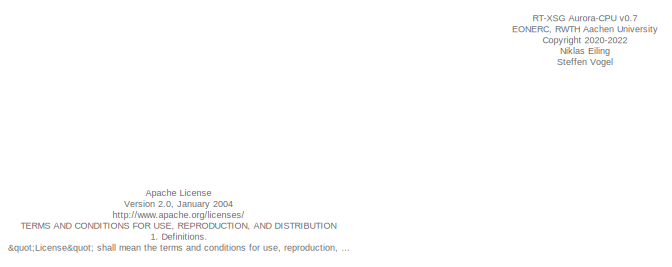
[diagram: root canvas - part 1/6, top left region]
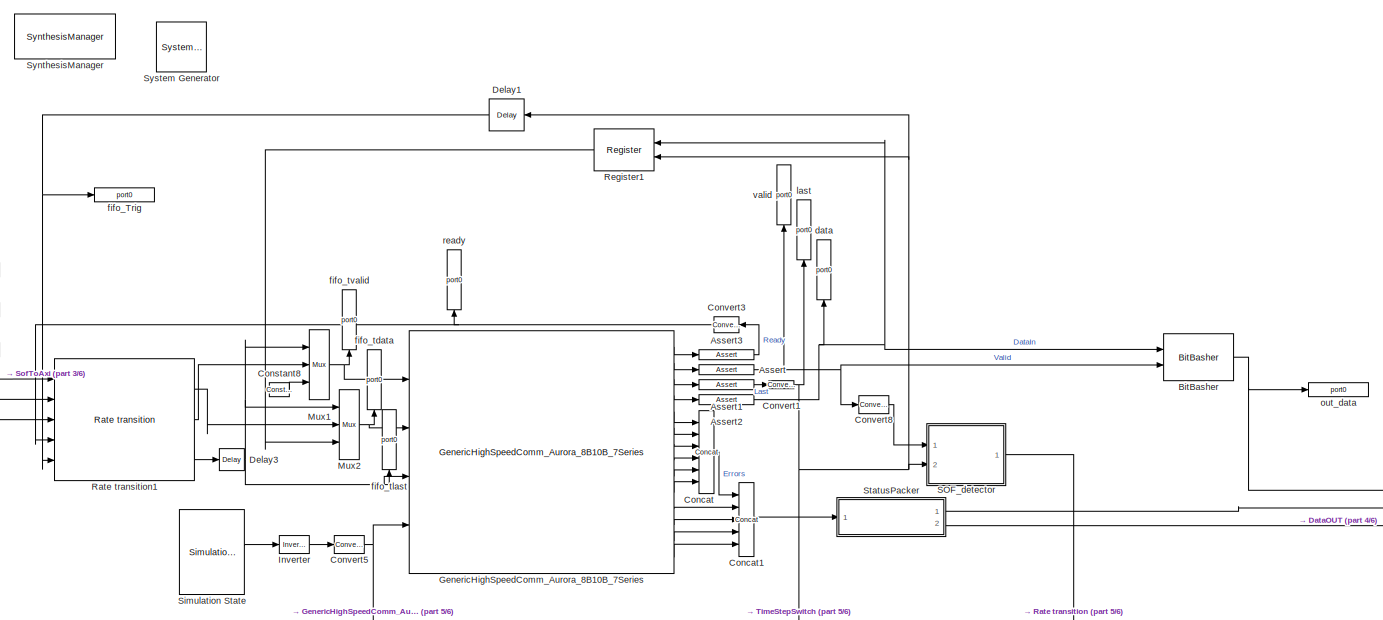
[diagram: root canvas - part 2/6, top center region]
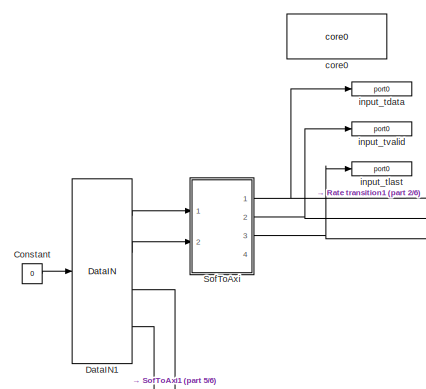
[diagram: root canvas - part 3/6, top center region]
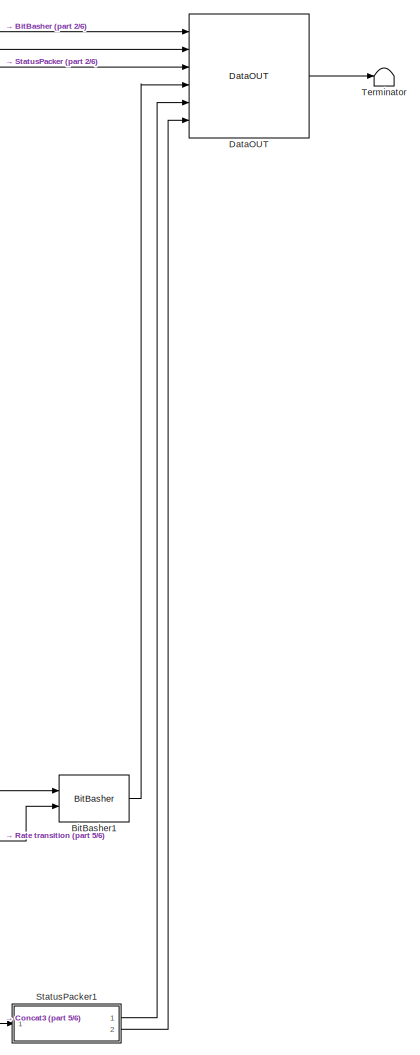
[diagram: root canvas - part 4/6, middle right region]
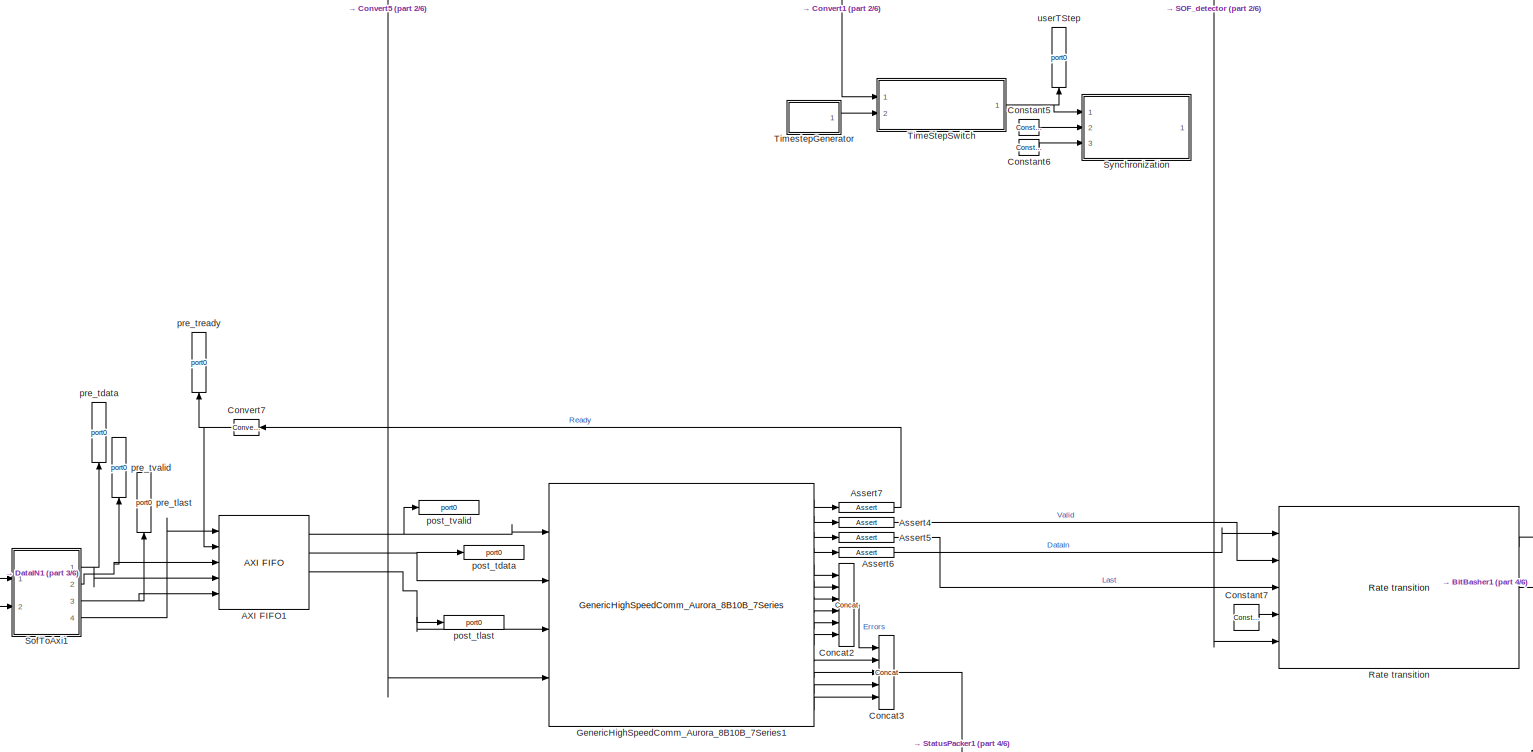
[diagram: root canvas - part 5/6, central region]
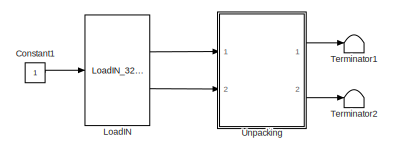
[diagram: root canvas - part 6/6, bottom left region]
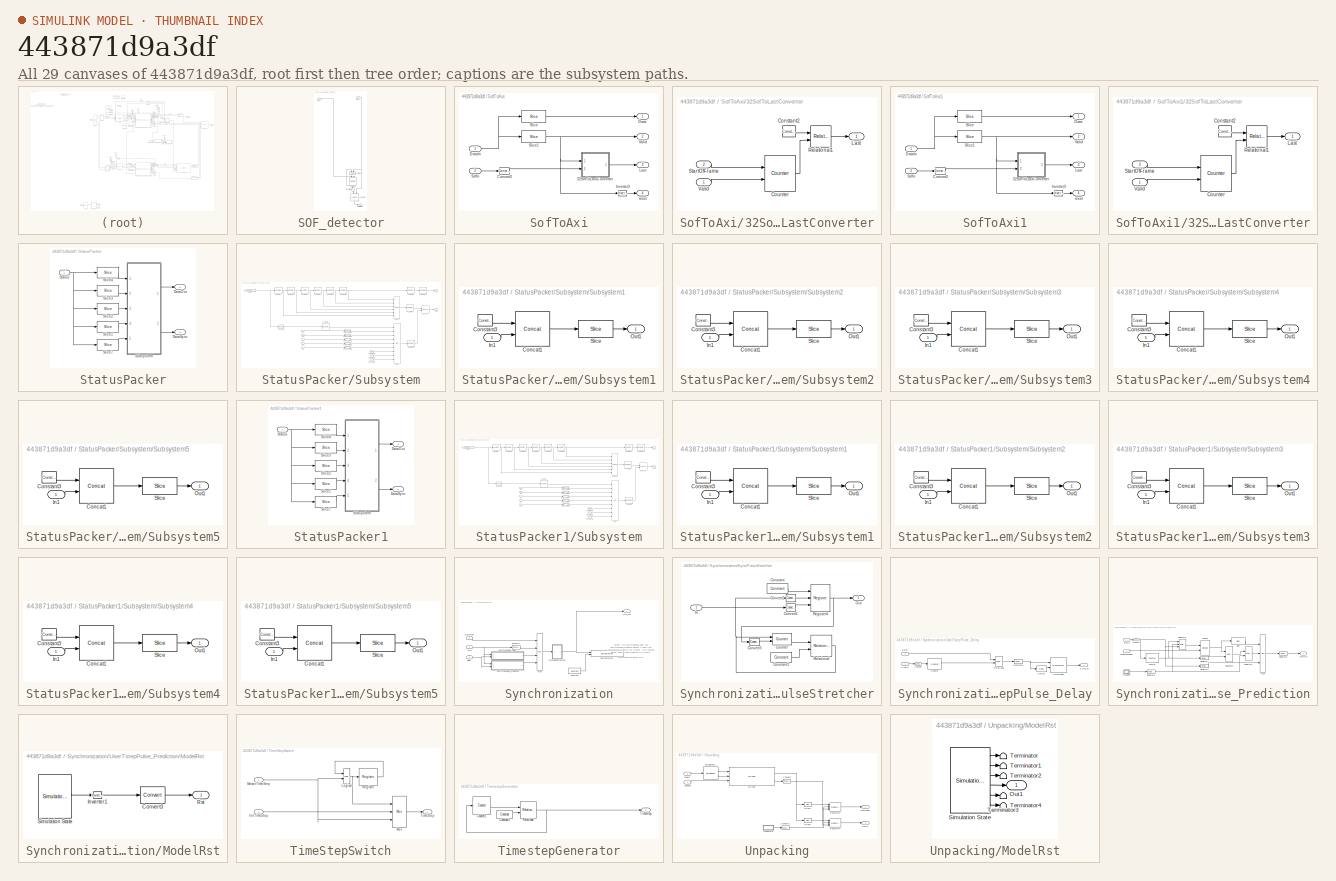
[diagram: thumbnail index - all 29 canvases of the model, root first then tree order]
MODEL slx_443871d9a3df
KIND model
CONFIG AbsTol = auto
CONFIG EnableMultiTasking = on
CONFIG FixedStep = auto
CONFIG InitFcn = period=5e-9;
CONFIG MaxStep = auto
CONFIG MinStep = auto
CONFIG PreLoadFcn = period=5e-9;
CONFIG RelTol = 1e-3
CONFIG SampleTimeConstraint = Unconstrained
CONFIG Solver = ode45
CONFIG SolverName = ode45
CONFIG StartTime = 0.0
CONFIG StopTime = 1/6000
BLOCK [Reference]  System Generator  REF=xbsIndex_r4/ System Generator
  AttributesFormatString = System\nGenerator
  Ports = []
  SourceBlock = xbsIndex_r4/ System Generator
  SourceType = Xilinx System Generator Block
  Tag = genX
  UserDataPersistent = on
BLOCK [Reference] AXI FIFO1  REF=xbsIndex_r4/AXI FIFO
  Ports = [5, 4]
  SourceBlock = xbsIndex_r4/AXI FIFO
  SourceType = Xilinx AXI FIFO Block Block
BLOCK [Reference] Assert  REF=xbsIndex_r4/Assert
  Ports = [1, 1]
  SourceBlock = xbsIndex_r4/Assert
  SourceType = Xilinx Assert Block
BLOCK [Reference] Assert1  REF=xbsIndex_r4/Assert
  Ports = [1, 1]
  SourceBlock = xbsIndex_r4/Assert
  SourceType = Xilinx Assert Block
BLOCK [Reference] Assert2  REF=xbsIndex_r4/Assert
  Ports = [1, 1]
  SourceBlock = xbsIndex_r4/Assert
  SourceType = Xilinx Assert Block
BLOCK [Reference] Assert3  REF=xbsIndex_r4/Assert
  Ports = [1, 1]
  SourceBlock = xbsIndex_r4/Assert
  SourceType = Xilinx Assert Block
BLOCK [Reference] Assert4  REF=xbsIndex_r4/Assert
  Ports = [1, 1]
  SourceBlock = xbsIndex_r4/Assert
  SourceType = Xilinx Assert Block
BLOCK [Reference] Assert5  REF=xbsIndex_r4/Assert
  Ports = [1, 1]
  SourceBlock = xbsIndex_r4/Assert
  SourceType = Xilinx Assert Block
BLOCK [Reference] Assert6  REF=xbsIndex_r4/Assert
  Ports = [1, 1]
  SourceBlock = xbsIndex_r4/Assert
  SourceType = Xilinx Assert Block
BLOCK [Reference] Assert7  REF=xbsIndex_r4/Assert
  Ports = [1, 1]
  SourceBlock = xbsIndex_r4/Assert
  SourceType = Xilinx Assert Block
BLOCK [Reference] BitBasher  REF=xbsIndex_r4/BitBasher
  Ports = [2, 1]
  SourceBlock = xbsIndex_r4/BitBasher
  SourceType = Xilinx BitBasher Block
BLOCK [Reference] BitBasher1  REF=xbsIndex_r4/BitBasher
  Ports = [2, 1]
  SourceBlock = xbsIndex_r4/BitBasher
  SourceType = Xilinx BitBasher Block
BLOCK [Reference] Concat  REF=xbsIndex_r4/Concat
  Ports = [6, 1]
  SourceBlock = xbsIndex_r4/Concat
  SourceType = Xilinx Bus Concatenator Block
BLOCK [Reference] Concat1  REF=xbsIndex_r4/Concat
  Ports = [5, 1]
  SourceBlock = xbsIndex_r4/Concat
  SourceType = Xilinx Bus Concatenator Block
BLOCK [Reference] Concat2  REF=xbsIndex_r4/Concat
  Ports = [6, 1]
  SourceBlock = xbsIndex_r4/Concat
  SourceType = Xilinx Bus Concatenator Block
BLOCK [Reference] Concat3  REF=xbsIndex_r4/Concat
  Ports = [5, 1]
  SourceBlock = xbsIndex_r4/Concat
  SourceType = Xilinx Bus Concatenator Block
BLOCK [Constant] Constant
  Value = 0
BLOCK [Constant] Constant1
BLOCK [Reference] Constant5  REF=xbsIndex_r4/Constant
  Ports = [0, 1]
  SourceBlock = xbsIndex_r4/Constant
  SourceType = Xilinx Constant Block Block
BLOCK [Reference] Constant6  REF=xbsIndex_r4/Constant
  Ports = [0, 1]
  SourceBlock = xbsIndex_r4/Constant
  SourceType = Xilinx Constant Block Block
BLOCK [Reference] Constant7  REF=xbsIndex_r4/Constant
  Ports = [0, 1]
  SourceBlock = xbsIndex_r4/Constant
  SourceType = Xilinx Constant Block Block
BLOCK [Reference] Constant8  REF=xbsIndex_r4/Constant
  Ports = [0, 1]
  SourceBlock = xbsIndex_r4/Constant
  SourceType = Xilinx Constant Block Block
BLOCK [Reference] Convert1  REF=xbsIndex_r4/Convert
  Ports = [1, 1]
  SourceBlock = xbsIndex_r4/Convert
  SourceType = Xilinx Type Converter Block
BLOCK [Reference] Convert3  REF=xbsIndex_r4/Convert
  Ports = [1, 1]
  SourceBlock = xbsIndex_r4/Convert
  SourceType = Xilinx Type Converter Block
BLOCK [Reference] Convert5  REF=xbsIndex_r4/Convert
  Ports = [1, 1]
  SourceBlock = xbsIndex_r4/Convert
  SourceType = Xilinx Type Converter Block
BLOCK [Reference] Convert7  REF=xbsIndex_r4/Convert
  Ports = [1, 1]
  SourceBlock = xbsIndex_r4/Convert
  SourceType = Xilinx Type Converter Block
BLOCK [Reference] Convert8  REF=xbsIndex_r4/Convert
  Ports = [1, 1]
  SourceBlock = xbsIndex_r4/Convert
  SourceType = Xilinx Type Converter Block
BLOCK [Reference] DataIN1  REF=rtxsg_communication/DataIN
  Ports = [1, 4]
  SourceBlock = rtxsg_communication/DataIN
  SourceType = DataIN
BLOCK [Reference] DataOUT  REF=rtxsg_communication/DataOUT
  Ports = [6, 1]
  SourceBlock = rtxsg_communication/DataOUT
  SourceType = DataOUT
BLOCK [Reference] Delay1  REF=xbsIndex_r4/Delay
  Ports = [1, 1]
  SourceBlock = xbsIndex_r4/Delay
  SourceType = Xilinx Delay Block
BLOCK [Reference] Delay3  REF=xbsIndex_r4/Delay
  Ports = [1, 1]
  SourceBlock = xbsIndex_r4/Delay
  SourceType = Xilinx Delay Block
BLOCK [Reference] GenericHighSpeedComm_Aurora_8B10B_7Series  REF=HighSpeedCommIO_lib/GenericHighSpeedComm_Aurora_8B10B_7Series
  Ports = [4, 14]
  SourceBlock = HighSpeedCommIO_lib/GenericHighSpeedComm_Aurora_8B10B_7Series
  SourceType = MMC_Converter_COMM
BLOCK [Reference] GenericHighSpeedComm_Aurora_8B10B_7Series1  REF=HighSpeedCommIO_lib/GenericHighSpeedComm_Aurora_8B10B_7Series
  Ports = [4, 14]
  SourceBlock = HighSpeedCommIO_lib/GenericHighSpeedComm_Aurora_8B10B_7Series
  SourceType = MMC_Converter_COMM
BLOCK [Reference] Inverter  REF=xbsIndex_r4/Inverter
  Ports = [1, 1]
  SourceBlock = xbsIndex_r4/Inverter
  SourceType = Xilinx Inverter Block
BLOCK [Reference] LoadIN  REF=rtxsg_communication/LoadIN_32ports
  Ports = [1, 2]
  SourceBlock = rtxsg_communication/LoadIN_32ports
  SourceType = LoadIN
BLOCK [Reference] Mux1  REF=xbsIndex_r4/Mux
  Ports = [3, 1]
  SourceBlock = xbsIndex_r4/Mux
  SourceType = Xilinx Bus Multiplexer Block
BLOCK [Reference] Mux2  REF=xbsIndex_r4/Mux
  Ports = [3, 1]
  SourceBlock = xbsIndex_r4/Mux
  SourceType = Xilinx Bus Multiplexer Block
BLOCK [Reference] Rate transition  REF=rtxsg_serdes_lib/Rate transition
  Ports = [5, 3]
  SourceBlock = rtxsg_serdes_lib/Rate transition
  SourceProductName = RT-XSG
  SourceType = Rate Transition
BLOCK [Reference] Rate transition1  REF=rtxsg_serdes_lib/Rate transition
  Ports = [5, 3]
  SourceBlock = rtxsg_serdes_lib/Rate transition
  SourceProductName = RT-XSG
  SourceType = Rate Transition
BLOCK [Reference] Register1  REF=xbsIndex_r4/Register
  Ports = [2, 1]
  SourceBlock = xbsIndex_r4/Register
  SourceType = Xilinx Register Block
BLOCK [SubSystem] SOF_detector
  Ports = [2, 1]
  RequestExecContextInheritance = off
BLOCK [Reference] SOF_detector/Inverter4  REF=xbsIndex_r4/Inverter
  Ports = [1, 1]
  SourceBlock = xbsIndex_r4/Inverter
  SourceType = Xilinx Inverter Block
BLOCK [Reference] SOF_detector/Logical1  REF=xbsIndex_r4/Logical
  Ports = [2, 1]
  SourceBlock = xbsIndex_r4/Logical
  SourceType = Xilinx Logical Block Block
BLOCK [Reference] SOF_detector/Logical5  REF=xbsIndex_r4/Logical
  Ports = [2, 1]
  SourceBlock = xbsIndex_r4/Logical
  SourceType = Xilinx Logical Block Block
BLOCK [Reference] SOF_detector/Register3  REF=xbsIndex_r4/Register
  Ports = [2, 1]
  SourceBlock = xbsIndex_r4/Register
  SourceType = Xilinx Register Block
BLOCK [Inport] SOF_detector/last
  IconDisplay = Port number
  Port = 2
BLOCK [Inport] SOF_detector/ready
  IconDisplay = Port number
BLOCK [Outport] SOF_detector/startofframe
  IconDisplay = Port number
BLOCK [Reference] Simulation State  REF=rtxsg_common/Simulation State
  Ports = [0, 6]
  SourceBlock = rtxsg_common/Simulation State
  SourceProductName = RT-XSG
  SourceType = Simulation State
BLOCK [SubSystem] SofToAxi
  Ports = [2, 4]
  RequestExecContextInheritance = off
BLOCK [SubSystem] SofToAxi/32SofToLastConverter
  Ports = [2, 1]
  RequestExecContextInheritance = off
BLOCK [Reference] SofToAxi/32SofToLastConverter/Constant2  REF=xbsIndex_r4/Constant
  Ports = [0, 1]
  SourceBlock = xbsIndex_r4/Constant
  SourceType = Xilinx Constant Block Block
BLOCK [Reference] SofToAxi/32SofToLastConverter/Counter  REF=xbsIndex_r4/Counter
  Ports = [2, 1]
  SourceBlock = xbsIndex_r4/Counter
  SourceType = Xilinx Counter Block
BLOCK [Outport] SofToAxi/32SofToLastConverter/Last
  IconDisplay = Port number
BLOCK [Reference] SofToAxi/32SofToLastConverter/Relational1  REF=xbsIndex_r4/Relational
  Ports = [2, 1]
  SourceBlock = xbsIndex_r4/Relational
  SourceType = Xilinx Arithmetic Relational Operator Block
BLOCK [Inport] SofToAxi/32SofToLastConverter/StartOfFrame
  IconDisplay = Port number
  Port = 2
BLOCK [Inport] SofToAxi/32SofToLastConverter/Valid
  IconDisplay = Port number
BLOCK [Reference] SofToAxi/Convert2  REF=xbsIndex_r4/Convert
  Ports = [1, 1]
  SourceBlock = xbsIndex_r4/Convert
  SourceType = Xilinx Type Converter Block
BLOCK [Outport] SofToAxi/Data
  IconDisplay = Port number
BLOCK [Inport] SofToAxi/DataIn
  IconDisplay = Port number
BLOCK [Reference] SofToAxi/Inverter3  REF=xbsIndex_r4/Inverter
  Ports = [1, 1]
  SourceBlock = xbsIndex_r4/Inverter
  SourceType = Xilinx Inverter Block
BLOCK [Outport] SofToAxi/Last
  IconDisplay = Port number
  Port = 3
BLOCK [Reference] SofToAxi/Slice  REF=xbsIndex_r4/Slice
  Ports = [1, 1]
  SourceBlock = xbsIndex_r4/Slice
  SourceType = Xilinx Bit Slice Extractor Block
BLOCK [Reference] SofToAxi/Slice1  REF=xbsIndex_r4/Slice
  Ports = [1, 1]
  SourceBlock = xbsIndex_r4/Slice
  SourceType = Xilinx Bit Slice Extractor Block
BLOCK [Inport] SofToAxi/SofIn
  IconDisplay = Port number
  Port = 2
BLOCK [Outport] SofToAxi/Valid
  IconDisplay = Port number
  Port = 2
BLOCK [Outport] SofToAxi/reset
  IconDisplay = Port number
  Port = 4
BLOCK [SubSystem] SofToAxi1
  Ports = [2, 4]
  RequestExecContextInheritance = off
BLOCK [SubSystem] SofToAxi1/32SofToLastConverter
  Ports = [2, 1]
  RequestExecContextInheritance = off
BLOCK [Reference] SofToAxi1/32SofToLastConverter/Constant2  REF=xbsIndex_r4/Constant
  Ports = [0, 1]
  SourceBlock = xbsIndex_r4/Constant
  SourceType = Xilinx Constant Block Block
BLOCK [Reference] SofToAxi1/32SofToLastConverter/Counter  REF=xbsIndex_r4/Counter
  Ports = [2, 1]
  SourceBlock = xbsIndex_r4/Counter
  SourceType = Xilinx Counter Block
BLOCK [Outport] SofToAxi1/32SofToLastConverter/Last
  IconDisplay = Port number
BLOCK [Reference] SofToAxi1/32SofToLastConverter/Relational1  REF=xbsIndex_r4/Relational
  Ports = [2, 1]
  SourceBlock = xbsIndex_r4/Relational
  SourceType = Xilinx Arithmetic Relational Operator Block
BLOCK [Inport] SofToAxi1/32SofToLastConverter/StartOfFrame
  IconDisplay = Port number
  Port = 2
BLOCK [Inport] SofToAxi1/32SofToLastConverter/Valid
  IconDisplay = Port number
BLOCK [Reference] SofToAxi1/Convert2  REF=xbsIndex_r4/Convert
  Ports = [1, 1]
  SourceBlock = xbsIndex_r4/Convert
  SourceType = Xilinx Type Converter Block
BLOCK [Outport] SofToAxi1/Data
  IconDisplay = Port number
BLOCK [Inport] SofToAxi1/DataIn
  IconDisplay = Port number
BLOCK [Reference] SofToAxi1/Inverter3  REF=xbsIndex_r4/Inverter
  Ports = [1, 1]
  SourceBlock = xbsIndex_r4/Inverter
  SourceType = Xilinx Inverter Block
BLOCK [Outport] SofToAxi1/Last
  IconDisplay = Port number
  Port = 3
BLOCK [Reference] SofToAxi1/Slice  REF=xbsIndex_r4/Slice
  Ports = [1, 1]
  SourceBlock = xbsIndex_r4/Slice
  SourceType = Xilinx Bit Slice Extractor Block
BLOCK [Reference] SofToAxi1/Slice1  REF=xbsIndex_r4/Slice
  Ports = [1, 1]
  SourceBlock = xbsIndex_r4/Slice
  SourceType = Xilinx Bit Slice Extractor Block
BLOCK [Inport] SofToAxi1/SofIn
  IconDisplay = Port number
  Port = 2
BLOCK [Outport] SofToAxi1/Valid
  IconDisplay = Port number
  Port = 2
BLOCK [Outport] SofToAxi1/reset
  IconDisplay = Port number
  Port = 4
BLOCK [SubSystem] StatusPacker
  Ports = [1, 2]
  RequestExecContextInheritance = off
BLOCK [Outport] StatusPacker/DataOut
  IconDisplay = Port number
BLOCK [Outport] StatusPacker/DataSync
  IconDisplay = Port number
  Port = 2
BLOCK [Reference] StatusPacker/Slice1  REF=xbsIndex_r4/Slice
  Ports = [1, 1]
  SourceBlock = xbsIndex_r4/Slice
  SourceType = Xilinx Bit Slice Extractor Block
BLOCK [Reference] StatusPacker/Slice2  REF=xbsIndex_r4/Slice
  Ports = [1, 1]
  SourceBlock = xbsIndex_r4/Slice
  SourceType = Xilinx Bit Slice Extractor Block
BLOCK [Reference] StatusPacker/Slice3  REF=xbsIndex_r4/Slice
  Ports = [1, 1]
  SourceBlock = xbsIndex_r4/Slice
  SourceType = Xilinx Bit Slice Extractor Block
BLOCK [Reference] StatusPacker/Slice4  REF=xbsIndex_r4/Slice
  Ports = [1, 1]
  SourceBlock = xbsIndex_r4/Slice
  SourceType = Xilinx Bit Slice Extractor Block
BLOCK [Reference] StatusPacker/Slice7  REF=xbsIndex_r4/Slice
  Ports = [1, 1]
  SourceBlock = xbsIndex_r4/Slice
  SourceType = Xilinx Bit Slice Extractor Block
BLOCK [Inport] StatusPacker/Status
  IconDisplay = Port number
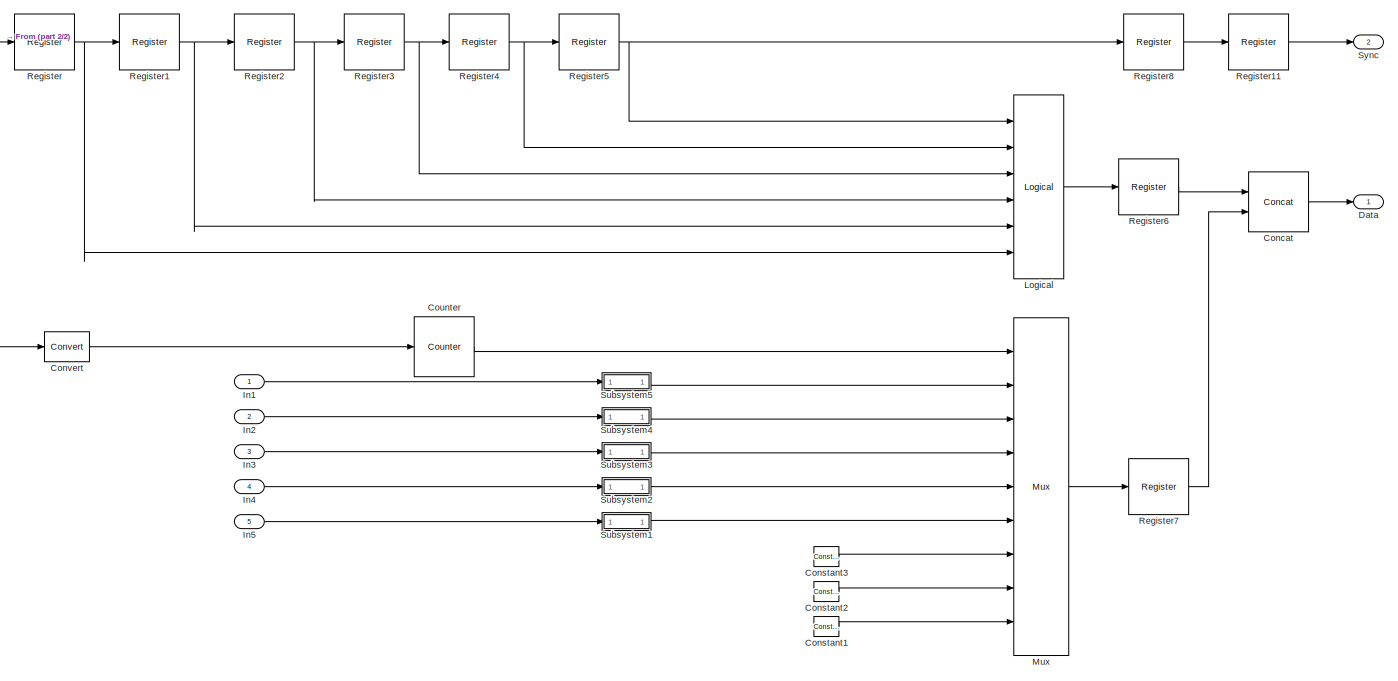
[diagram: StatusPacker/Subsystem - part 1/2, most of the canvas]
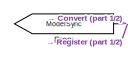
[diagram: StatusPacker/Subsystem - part 2/2, top left region]
BLOCK [SubSystem] StatusPacker/Subsystem
  Ports = [5, 2]
  RequestExecContextInheritance = off
BLOCK [Reference] StatusPacker/Subsystem/Concat  REF=xbsIndex_r4/Concat
  Ports = [2, 1]
  SourceBlock = xbsIndex_r4/Concat
  SourceType = Xilinx Bus Concatenator Block
BLOCK [Reference] StatusPacker/Subsystem/Constant1  REF=xbsIndex_r4/Constant
  Ports = [0, 1]
  SourceBlock = xbsIndex_r4/Constant
  SourceType = Xilinx Constant Block Block
BLOCK [Reference] StatusPacker/Subsystem/Constant2  REF=xbsIndex_r4/Constant
  Ports = [0, 1]
  SourceBlock = xbsIndex_r4/Constant
  SourceType = Xilinx Constant Block Block
BLOCK [Reference] StatusPacker/Subsystem/Constant3  REF=xbsIndex_r4/Constant
  Ports = [0, 1]
  SourceBlock = xbsIndex_r4/Constant
  SourceType = Xilinx Constant Block Block
BLOCK [Reference] StatusPacker/Subsystem/Convert  REF=xbsIndex_r4/Convert
  Ports = [1, 1]
  SourceBlock = xbsIndex_r4/Convert
  SourceType = Xilinx Type Converter Block
BLOCK [Reference] StatusPacker/Subsystem/Counter  REF=xbsIndex_r4/Counter
  Ports = [1, 1]
  SourceBlock = xbsIndex_r4/Counter
  SourceType = Xilinx Counter Block
BLOCK [Outport] StatusPacker/Subsystem/Data
  IconDisplay = Port number
BLOCK [From] StatusPacker/Subsystem/From
  GotoTag = ModelSync
  TagVisibility = global
BLOCK [Inport] StatusPacker/Subsystem/In1
  IconDisplay = Port number
BLOCK [Inport] StatusPacker/Subsystem/In2
  IconDisplay = Port number
  Port = 2
BLOCK [Inport] StatusPacker/Subsystem/In3
  IconDisplay = Port number
  Port = 3
BLOCK [Inport] StatusPacker/Subsystem/In4
  IconDisplay = Port number
  Port = 4
BLOCK [Inport] StatusPacker/Subsystem/In5
  IconDisplay = Port number
  Port = 5
BLOCK [Reference] StatusPacker/Subsystem/Logical  REF=xbsIndex_r4/Logical
  Ports = [6, 1]
  SourceBlock = xbsIndex_r4/Logical
  SourceType = Xilinx Logical Block Block
BLOCK [Reference] StatusPacker/Subsystem/Mux  REF=xbsIndex_r4/Mux
  Ports = [9, 1]
  SourceBlock = xbsIndex_r4/Mux
  SourceType = Xilinx Bus Multiplexer Block
BLOCK [Reference] StatusPacker/Subsystem/Register  REF=xbsIndex_r4/Register
  Ports = [1, 1]
  SourceBlock = xbsIndex_r4/Register
  SourceType = Xilinx Register Block
BLOCK [Reference] StatusPacker/Subsystem/Register1  REF=xbsIndex_r4/Register
  Ports = [1, 1]
  SourceBlock = xbsIndex_r4/Register
  SourceType = Xilinx Register Block
BLOCK [Reference] StatusPacker/Subsystem/Register11  REF=xbsIndex_r4/Register
  Ports = [1, 1]
  SourceBlock = xbsIndex_r4/Register
  SourceType = Xilinx Register Block
BLOCK [Reference] StatusPacker/Subsystem/Register2  REF=xbsIndex_r4/Register
  Ports = [1, 1]
  SourceBlock = xbsIndex_r4/Register
  SourceType = Xilinx Register Block
BLOCK [Reference] StatusPacker/Subsystem/Register3  REF=xbsIndex_r4/Register
  Ports = [1, 1]
  SourceBlock = xbsIndex_r4/Register
  SourceType = Xilinx Register Block
BLOCK [Reference] StatusPacker/Subsystem/Register4  REF=xbsIndex_r4/Register
  Ports = [1, 1]
  SourceBlock = xbsIndex_r4/Register
  SourceType = Xilinx Register Block
BLOCK [Reference] StatusPacker/Subsystem/Register5  REF=xbsIndex_r4/Register
  Ports = [1, 1]
  SourceBlock = xbsIndex_r4/Register
  SourceType = Xilinx Register Block
BLOCK [Reference] StatusPacker/Subsystem/Register6  REF=xbsIndex_r4/Register
  Ports = [1, 1]
  SourceBlock = xbsIndex_r4/Register
  SourceType = Xilinx Register Block
BLOCK [Reference] StatusPacker/Subsystem/Register7  REF=xbsIndex_r4/Register
  Ports = [1, 1]
  SourceBlock = xbsIndex_r4/Register
  SourceType = Xilinx Register Block
BLOCK [Reference] StatusPacker/Subsystem/Register8  REF=xbsIndex_r4/Register
  Ports = [1, 1]
  SourceBlock = xbsIndex_r4/Register
  SourceType = Xilinx Register Block
BLOCK [SubSystem] StatusPacker/Subsystem/Subsystem1
  Ports = [1, 1]
  RequestExecContextInheritance = off
BLOCK [Reference] StatusPacker/Subsystem/Subsystem1/Concat1  REF=xbsIndex_r4/Concat
  Ports = [2, 1]
  SourceBlock = xbsIndex_r4/Concat
  SourceType = Xilinx Bus Concatenator Block
BLOCK [Reference] StatusPacker/Subsystem/Subsystem1/Constant3  REF=xbsIndex_r4/Constant
  Ports = [0, 1]
  SourceBlock = xbsIndex_r4/Constant
  SourceType = Xilinx Constant Block Block
BLOCK [Inport] StatusPacker/Subsystem/Subsystem1/In1
  IconDisplay = Port number
BLOCK [Outport] StatusPacker/Subsystem/Subsystem1/Out1
  IconDisplay = Port number
BLOCK [Reference] StatusPacker/Subsystem/Subsystem1/Slice  REF=xbsIndex_r4/Slice
  Ports = [1, 1]
  SourceBlock = xbsIndex_r4/Slice
  SourceType = Xilinx Bit Slice Extractor Block
BLOCK [SubSystem] StatusPacker/Subsystem/Subsystem2
  Ports = [1, 1]
  RequestExecContextInheritance = off
BLOCK [Reference] StatusPacker/Subsystem/Subsystem2/Concat1  REF=xbsIndex_r4/Concat
  Ports = [2, 1]
  SourceBlock = xbsIndex_r4/Concat
  SourceType = Xilinx Bus Concatenator Block
BLOCK [Reference] StatusPacker/Subsystem/Subsystem2/Constant3  REF=xbsIndex_r4/Constant
  Ports = [0, 1]
  SourceBlock = xbsIndex_r4/Constant
  SourceType = Xilinx Constant Block Block
BLOCK [Inport] StatusPacker/Subsystem/Subsystem2/In1
  IconDisplay = Port number
BLOCK [Outport] StatusPacker/Subsystem/Subsystem2/Out1
  IconDisplay = Port number
BLOCK [Reference] StatusPacker/Subsystem/Subsystem2/Slice  REF=xbsIndex_r4/Slice
  Ports = [1, 1]
  SourceBlock = xbsIndex_r4/Slice
  SourceType = Xilinx Bit Slice Extractor Block
BLOCK [SubSystem] StatusPacker/Subsystem/Subsystem3
  Ports = [1, 1]
  RequestExecContextInheritance = off
BLOCK [Reference] StatusPacker/Subsystem/Subsystem3/Concat1  REF=xbsIndex_r4/Concat
  Ports = [2, 1]
  SourceBlock = xbsIndex_r4/Concat
  SourceType = Xilinx Bus Concatenator Block
BLOCK [Reference] StatusPacker/Subsystem/Subsystem3/Constant3  REF=xbsIndex_r4/Constant
  Ports = [0, 1]
  SourceBlock = xbsIndex_r4/Constant
  SourceType = Xilinx Constant Block Block
BLOCK [Inport] StatusPacker/Subsystem/Subsystem3/In1
  IconDisplay = Port number
BLOCK [Outport] StatusPacker/Subsystem/Subsystem3/Out1
  IconDisplay = Port number
BLOCK [Reference] StatusPacker/Subsystem/Subsystem3/Slice  REF=xbsIndex_r4/Slice
  Ports = [1, 1]
  SourceBlock = xbsIndex_r4/Slice
  SourceType = Xilinx Bit Slice Extractor Block
BLOCK [SubSystem] StatusPacker/Subsystem/Subsystem4
  Ports = [1, 1]
  RequestExecContextInheritance = off
BLOCK [Reference] StatusPacker/Subsystem/Subsystem4/Concat1  REF=xbsIndex_r4/Concat
  Ports = [2, 1]
  SourceBlock = xbsIndex_r4/Concat
  SourceType = Xilinx Bus Concatenator Block
BLOCK [Reference] StatusPacker/Subsystem/Subsystem4/Constant3  REF=xbsIndex_r4/Constant
  Ports = [0, 1]
  SourceBlock = xbsIndex_r4/Constant
  SourceType = Xilinx Constant Block Block
BLOCK [Inport] StatusPacker/Subsystem/Subsystem4/In1
  IconDisplay = Port number
BLOCK [Outport] StatusPacker/Subsystem/Subsystem4/Out1
  IconDisplay = Port number
BLOCK [Reference] StatusPacker/Subsystem/Subsystem4/Slice  REF=xbsIndex_r4/Slice
  Ports = [1, 1]
  SourceBlock = xbsIndex_r4/Slice
  SourceType = Xilinx Bit Slice Extractor Block
BLOCK [SubSystem] StatusPacker/Subsystem/Subsystem5
  Ports = [1, 1]
  RequestExecContextInheritance = off
BLOCK [Reference] StatusPacker/Subsystem/Subsystem5/Concat1  REF=xbsIndex_r4/Concat
  Ports = [2, 1]
  SourceBlock = xbsIndex_r4/Concat
  SourceType = Xilinx Bus Concatenator Block
BLOCK [Reference] StatusPacker/Subsystem/Subsystem5/Constant3  REF=xbsIndex_r4/Constant
  Ports = [0, 1]
  SourceBlock = xbsIndex_r4/Constant
  SourceType = Xilinx Constant Block Block
BLOCK [Inport] StatusPacker/Subsystem/Subsystem5/In1
  IconDisplay = Port number
BLOCK [Outport] StatusPacker/Subsystem/Subsystem5/Out1
  IconDisplay = Port number
BLOCK [Reference] StatusPacker/Subsystem/Subsystem5/Slice  REF=xbsIndex_r4/Slice
  Ports = [1, 1]
  SourceBlock = xbsIndex_r4/Slice
  SourceType = Xilinx Bit Slice Extractor Block
BLOCK [Outport] StatusPacker/Subsystem/Sync
  IconDisplay = Port number
  Port = 2
BLOCK [SubSystem] StatusPacker1
  Ports = [1, 2]
  RequestExecContextInheritance = off
BLOCK [Outport] StatusPacker1/DataOut
  IconDisplay = Port number
BLOCK [Outport] StatusPacker1/DataSync
  IconDisplay = Port number
  Port = 2
BLOCK [Reference] StatusPacker1/Slice1  REF=xbsIndex_r4/Slice
  Ports = [1, 1]
  SourceBlock = xbsIndex_r4/Slice
  SourceType = Xilinx Bit Slice Extractor Block
BLOCK [Reference] StatusPacker1/Slice2  REF=xbsIndex_r4/Slice
  Ports = [1, 1]
  SourceBlock = xbsIndex_r4/Slice
  SourceType = Xilinx Bit Slice Extractor Block
BLOCK [Reference] StatusPacker1/Slice3  REF=xbsIndex_r4/Slice
  Ports = [1, 1]
  SourceBlock = xbsIndex_r4/Slice
  SourceType = Xilinx Bit Slice Extractor Block
BLOCK [Reference] StatusPacker1/Slice4  REF=xbsIndex_r4/Slice
  Ports = [1, 1]
  SourceBlock = xbsIndex_r4/Slice
  SourceType = Xilinx Bit Slice Extractor Block
BLOCK [Reference] StatusPacker1/Slice7  REF=xbsIndex_r4/Slice
  Ports = [1, 1]
  SourceBlock = xbsIndex_r4/Slice
  SourceType = Xilinx Bit Slice Extractor Block
BLOCK [Inport] StatusPacker1/Status
  IconDisplay = Port number
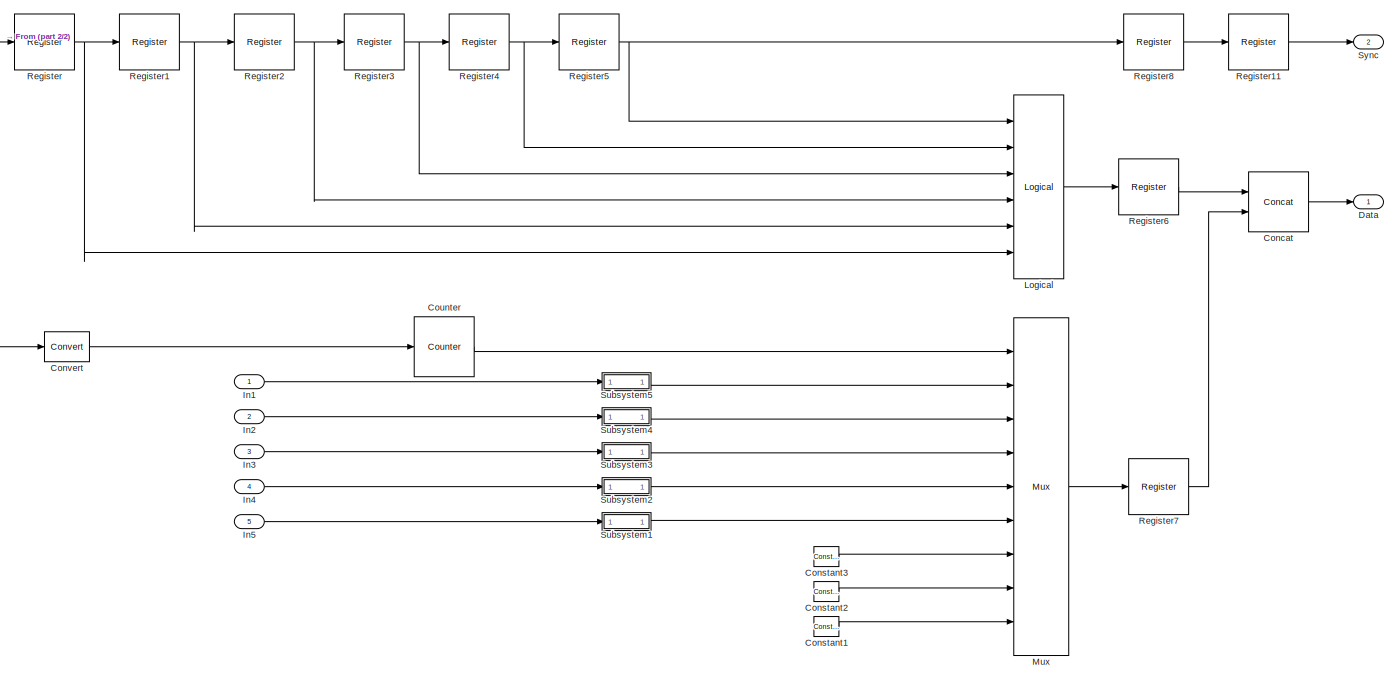
[diagram: StatusPacker1/Subsystem - part 1/2, most of the canvas]
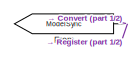
[diagram: StatusPacker1/Subsystem - part 2/2, top left region]
BLOCK [SubSystem] StatusPacker1/Subsystem
  Ports = [5, 2]
  RequestExecContextInheritance = off
BLOCK [Reference] StatusPacker1/Subsystem/Concat  REF=xbsIndex_r4/Concat
  Ports = [2, 1]
  SourceBlock = xbsIndex_r4/Concat
  SourceType = Xilinx Bus Concatenator Block
BLOCK [Reference] StatusPacker1/Subsystem/Constant1  REF=xbsIndex_r4/Constant
  Ports = [0, 1]
  SourceBlock = xbsIndex_r4/Constant
  SourceType = Xilinx Constant Block Block
BLOCK [Reference] StatusPacker1/Subsystem/Constant2  REF=xbsIndex_r4/Constant
  Ports = [0, 1]
  SourceBlock = xbsIndex_r4/Constant
  SourceType = Xilinx Constant Block Block
BLOCK [Reference] StatusPacker1/Subsystem/Constant3  REF=xbsIndex_r4/Constant
  Ports = [0, 1]
  SourceBlock = xbsIndex_r4/Constant
  SourceType = Xilinx Constant Block Block
BLOCK [Reference] StatusPacker1/Subsystem/Convert  REF=xbsIndex_r4/Convert
  Ports = [1, 1]
  SourceBlock = xbsIndex_r4/Convert
  SourceType = Xilinx Type Converter Block
BLOCK [Reference] StatusPacker1/Subsystem/Counter  REF=xbsIndex_r4/Counter
  Ports = [1, 1]
  SourceBlock = xbsIndex_r4/Counter
  SourceType = Xilinx Counter Block
BLOCK [Outport] StatusPacker1/Subsystem/Data
  IconDisplay = Port number
BLOCK [From] StatusPacker1/Subsystem/From
  GotoTag = ModelSync
  TagVisibility = global
BLOCK [Inport] StatusPacker1/Subsystem/In1
  IconDisplay = Port number
BLOCK [Inport] StatusPacker1/Subsystem/In2
  IconDisplay = Port number
  Port = 2
BLOCK [Inport] StatusPacker1/Subsystem/In3
  IconDisplay = Port number
  Port = 3
BLOCK [Inport] StatusPacker1/Subsystem/In4
  IconDisplay = Port number
  Port = 4
BLOCK [Inport] StatusPacker1/Subsystem/In5
  IconDisplay = Port number
  Port = 5
BLOCK [Reference] StatusPacker1/Subsystem/Logical  REF=xbsIndex_r4/Logical
  Ports = [6, 1]
  SourceBlock = xbsIndex_r4/Logical
  SourceType = Xilinx Logical Block Block
BLOCK [Reference] StatusPacker1/Subsystem/Mux  REF=xbsIndex_r4/Mux
  Ports = [9, 1]
  SourceBlock = xbsIndex_r4/Mux
  SourceType = Xilinx Bus Multiplexer Block
BLOCK [Reference] StatusPacker1/Subsystem/Register  REF=xbsIndex_r4/Register
  Ports = [1, 1]
  SourceBlock = xbsIndex_r4/Register
  SourceType = Xilinx Register Block
BLOCK [Reference] StatusPacker1/Subsystem/Register1  REF=xbsIndex_r4/Register
  Ports = [1, 1]
  SourceBlock = xbsIndex_r4/Register
  SourceType = Xilinx Register Block
BLOCK [Reference] StatusPacker1/Subsystem/Register11  REF=xbsIndex_r4/Register
  Ports = [1, 1]
  SourceBlock = xbsIndex_r4/Register
  SourceType = Xilinx Register Block
BLOCK [Reference] StatusPacker1/Subsystem/Register2  REF=xbsIndex_r4/Register
  Ports = [1, 1]
  SourceBlock = xbsIndex_r4/Register
  SourceType = Xilinx Register Block
BLOCK [Reference] StatusPacker1/Subsystem/Register3  REF=xbsIndex_r4/Register
  Ports = [1, 1]
  SourceBlock = xbsIndex_r4/Register
  SourceType = Xilinx Register Block
BLOCK [Reference] StatusPacker1/Subsystem/Register4  REF=xbsIndex_r4/Register
  Ports = [1, 1]
  SourceBlock = xbsIndex_r4/Register
  SourceType = Xilinx Register Block
BLOCK [Reference] StatusPacker1/Subsystem/Register5  REF=xbsIndex_r4/Register
  Ports = [1, 1]
  SourceBlock = xbsIndex_r4/Register
  SourceType = Xilinx Register Block
BLOCK [Reference] StatusPacker1/Subsystem/Register6  REF=xbsIndex_r4/Register
  Ports = [1, 1]
  SourceBlock = xbsIndex_r4/Register
  SourceType = Xilinx Register Block
BLOCK [Reference] StatusPacker1/Subsystem/Register7  REF=xbsIndex_r4/Register
  Ports = [1, 1]
  SourceBlock = xbsIndex_r4/Register
  SourceType = Xilinx Register Block
BLOCK [Reference] StatusPacker1/Subsystem/Register8  REF=xbsIndex_r4/Register
  Ports = [1, 1]
  SourceBlock = xbsIndex_r4/Register
  SourceType = Xilinx Register Block
BLOCK [SubSystem] StatusPacker1/Subsystem/Subsystem1
  Ports = [1, 1]
  RequestExecContextInheritance = off
BLOCK [Reference] StatusPacker1/Subsystem/Subsystem1/Concat1  REF=xbsIndex_r4/Concat
  Ports = [2, 1]
  SourceBlock = xbsIndex_r4/Concat
  SourceType = Xilinx Bus Concatenator Block
BLOCK [Reference] StatusPacker1/Subsystem/Subsystem1/Constant3  REF=xbsIndex_r4/Constant
  Ports = [0, 1]
  SourceBlock = xbsIndex_r4/Constant
  SourceType = Xilinx Constant Block Block
BLOCK [Inport] StatusPacker1/Subsystem/Subsystem1/In1
  IconDisplay = Port number
BLOCK [Outport] StatusPacker1/Subsystem/Subsystem1/Out1
  IconDisplay = Port number
BLOCK [Reference] StatusPacker1/Subsystem/Subsystem1/Slice  REF=xbsIndex_r4/Slice
  Ports = [1, 1]
  SourceBlock = xbsIndex_r4/Slice
  SourceType = Xilinx Bit Slice Extractor Block
BLOCK [SubSystem] StatusPacker1/Subsystem/Subsystem2
  Ports = [1, 1]
  RequestExecContextInheritance = off
BLOCK [Reference] StatusPacker1/Subsystem/Subsystem2/Concat1  REF=xbsIndex_r4/Concat
  Ports = [2, 1]
  SourceBlock = xbsIndex_r4/Concat
  SourceType = Xilinx Bus Concatenator Block
BLOCK [Reference] StatusPacker1/Subsystem/Subsystem2/Constant3  REF=xbsIndex_r4/Constant
  Ports = [0, 1]
  SourceBlock = xbsIndex_r4/Constant
  SourceType = Xilinx Constant Block Block
BLOCK [Inport] StatusPacker1/Subsystem/Subsystem2/In1
  IconDisplay = Port number
BLOCK [Outport] StatusPacker1/Subsystem/Subsystem2/Out1
  IconDisplay = Port number
BLOCK [Reference] StatusPacker1/Subsystem/Subsystem2/Slice  REF=xbsIndex_r4/Slice
  Ports = [1, 1]
  SourceBlock = xbsIndex_r4/Slice
  SourceType = Xilinx Bit Slice Extractor Block
BLOCK [SubSystem] StatusPacker1/Subsystem/Subsystem3
  Ports = [1, 1]
  RequestExecContextInheritance = off
BLOCK [Reference] StatusPacker1/Subsystem/Subsystem3/Concat1  REF=xbsIndex_r4/Concat
  Ports = [2, 1]
  SourceBlock = xbsIndex_r4/Concat
  SourceType = Xilinx Bus Concatenator Block
BLOCK [Reference] StatusPacker1/Subsystem/Subsystem3/Constant3  REF=xbsIndex_r4/Constant
  Ports = [0, 1]
  SourceBlock = xbsIndex_r4/Constant
  SourceType = Xilinx Constant Block Block
BLOCK [Inport] StatusPacker1/Subsystem/Subsystem3/In1
  IconDisplay = Port number
BLOCK [Outport] StatusPacker1/Subsystem/Subsystem3/Out1
  IconDisplay = Port number
BLOCK [Reference] StatusPacker1/Subsystem/Subsystem3/Slice  REF=xbsIndex_r4/Slice
  Ports = [1, 1]
  SourceBlock = xbsIndex_r4/Slice
  SourceType = Xilinx Bit Slice Extractor Block
BLOCK [SubSystem] StatusPacker1/Subsystem/Subsystem4
  Ports = [1, 1]
  RequestExecContextInheritance = off
BLOCK [Reference] StatusPacker1/Subsystem/Subsystem4/Concat1  REF=xbsIndex_r4/Concat
  Ports = [2, 1]
  SourceBlock = xbsIndex_r4/Concat
  SourceType = Xilinx Bus Concatenator Block
BLOCK [Reference] StatusPacker1/Subsystem/Subsystem4/Constant3  REF=xbsIndex_r4/Constant
  Ports = [0, 1]
  SourceBlock = xbsIndex_r4/Constant
  SourceType = Xilinx Constant Block Block
BLOCK [Inport] StatusPacker1/Subsystem/Subsystem4/In1
  IconDisplay = Port number
BLOCK [Outport] StatusPacker1/Subsystem/Subsystem4/Out1
  IconDisplay = Port number
BLOCK [Reference] StatusPacker1/Subsystem/Subsystem4/Slice  REF=xbsIndex_r4/Slice
  Ports = [1, 1]
  SourceBlock = xbsIndex_r4/Slice
  SourceType = Xilinx Bit Slice Extractor Block
BLOCK [SubSystem] StatusPacker1/Subsystem/Subsystem5
  Ports = [1, 1]
  RequestExecContextInheritance = off
BLOCK [Reference] StatusPacker1/Subsystem/Subsystem5/Concat1  REF=xbsIndex_r4/Concat
  Ports = [2, 1]
  SourceBlock = xbsIndex_r4/Concat
  SourceType = Xilinx Bus Concatenator Block
BLOCK [Reference] StatusPacker1/Subsystem/Subsystem5/Constant3  REF=xbsIndex_r4/Constant
  Ports = [0, 1]
  SourceBlock = xbsIndex_r4/Constant
  SourceType = Xilinx Constant Block Block
BLOCK [Inport] StatusPacker1/Subsystem/Subsystem5/In1
  IconDisplay = Port number
BLOCK [Outport] StatusPacker1/Subsystem/Subsystem5/Out1
  IconDisplay = Port number
BLOCK [Reference] StatusPacker1/Subsystem/Subsystem5/Slice  REF=xbsIndex_r4/Slice
  Ports = [1, 1]
  SourceBlock = xbsIndex_r4/Slice
  SourceType = Xilinx Bit Slice Extractor Block
BLOCK [Outport] StatusPacker1/Subsystem/Sync
  IconDisplay = Port number
  Port = 2
BLOCK [SubSystem] Synchronization
  Ports = [3, 1]
  RequestExecContextInheritance = off
BLOCK [Reference] Synchronization/Constant  REF=xbsIndex_r4/Constant
  Ports = [0, 1]
  SourceBlock = xbsIndex_r4/Constant
  SourceType = Xilinx Constant Block Block
BLOCK [Reference] Synchronization/Convert1  REF=xbsIndex_r4/Convert
  Ports = [1, 1]
  SourceBlock = xbsIndex_r4/Convert
  SourceType = Xilinx Type Converter Block
BLOCK [Inport] Synchronization/Delay
  IconDisplay = Port number
  Port = 3
BLOCK [Reference] Synchronization/Mux  REF=xbsIndex_r4/Mux
  Ports = [4, 1]
  SourceBlock = xbsIndex_r4/Mux
  SourceType = Xilinx Bus Multiplexer Block
BLOCK [Inport] Synchronization/Sync
  IconDisplay = Port number
BLOCK [Inport] Synchronization/SyncMode
  IconDisplay = Port number
  Port = 2
BLOCK [SubSystem] Synchronization/SyncPulseStretcher
  Ports = [1, 1]
  RequestExecContextInheritance = off
BLOCK [Reference] Synchronization/SyncPulseStretcher/Constant  REF=xbsIndex_r4/Constant
  Ports = [0, 1]
  SourceBlock = xbsIndex_r4/Constant
  SourceType = Xilinx Constant Block Block
BLOCK [Reference] Synchronization/SyncPulseStretcher/Constant1  REF=xbsIndex_r4/Constant
  Ports = [0, 1]
  SourceBlock = xbsIndex_r4/Constant
  SourceType = Xilinx Constant Block Block
BLOCK [Reference] Synchronization/SyncPulseStretcher/Convert1  REF=xbsIndex_r4/Convert
  Ports = [1, 1]
  SourceBlock = xbsIndex_r4/Convert
  SourceType = Xilinx Type Converter Block
BLOCK [Reference] Synchronization/SyncPulseStretcher/Convert2  REF=xbsIndex_r4/Convert
  Ports = [1, 1]
  SourceBlock = xbsIndex_r4/Convert
  SourceType = Xilinx Type Converter Block
BLOCK [Reference] Synchronization/SyncPulseStretcher/Convert3  REF=xbsIndex_r4/Convert
  Ports = [1, 1]
  SourceBlock = xbsIndex_r4/Convert
  SourceType = Xilinx Type Converter Block
BLOCK [Reference] Synchronization/SyncPulseStretcher/Counter  REF=xbsIndex_r4/Counter
  Ports = [2, 1]
  SourceBlock = xbsIndex_r4/Counter
  SourceType = Xilinx Counter Block
BLOCK [Inport] Synchronization/SyncPulseStretcher/In
  IconDisplay = Port number
BLOCK [Outport] Synchronization/SyncPulseStretcher/Out
  IconDisplay = Port number
BLOCK [Reference] Synchronization/SyncPulseStretcher/Register4  REF=xbsIndex_r4/Register
  Ports = [3, 1]
  SourceBlock = xbsIndex_r4/Register
  SourceType = Xilinx Register Block
BLOCK [Reference] Synchronization/SyncPulseStretcher/Relational  REF=xbsIndex_r4/Relational
  Ports = [2, 1]
  SourceBlock = xbsIndex_r4/Relational
  SourceType = Xilinx Arithmetic Relational Operator Block
BLOCK [Reference] Synchronization/UserTimestep1  REF=vc707_lib/UserTimestep
  Ports = [2]
  SourceBlock = vc707_lib/UserTimestep
  SourceProductName = RT-XSG
BLOCK [SubSystem] Synchronization/UserTstepPulse_Delay
  Ports = [2, 1]
  RequestExecContextInheritance = off
BLOCK [Reference] Synchronization/UserTstepPulse_Delay/Convert  REF=xbsIndex_r4/Convert
  Ports = [1, 1]
  SourceBlock = xbsIndex_r4/Convert
  SourceType = Xilinx Type Converter Block
BLOCK [Reference] Synchronization/UserTstepPulse_Delay/Counter  REF=xbsIndex_r4/Counter
  Ports = [1, 1]
  SourceBlock = xbsIndex_r4/Counter
  SourceType = Xilinx Counter Block
BLOCK [Inport] Synchronization/UserTstepPulse_Delay/Delay
  IconDisplay = Port number
  Port = 2
BLOCK [Reference] Synchronization/UserTstepPulse_Delay/Delay1  REF=xbsIndex_r4/Delay
  Ports = [1, 1]
  SourceBlock = xbsIndex_r4/Delay
  SourceType = Xilinx Delay Block
BLOCK [Reference] Synchronization/UserTstepPulse_Delay/Register6  REF=xbsIndex_r4/Register
  Ports = [1, 1]
  SourceBlock = xbsIndex_r4/Register
  SourceType = Xilinx Register Block
BLOCK [Reference] Synchronization/UserTstepPulse_Delay/Relational  REF=xbsIndex_r4/Relational
  Ports = [2, 1]
  SourceBlock = xbsIndex_r4/Relational
  SourceType = Xilinx Arithmetic Relational Operator Block
BLOCK [Inport] Synchronization/UserTstepPulse_Delay/SyncIn
  IconDisplay = Port number
BLOCK [Outport] Synchronization/UserTstepPulse_Delay/SyncOut
  IconDisplay = Port number
BLOCK [Reference] Synchronization/UserTstepPulse_Delay/rising edge  REF=xbsIndex_r4/Expression
  Ports = [2, 1]
  SourceBlock = xbsIndex_r4/Expression
  SourceType = Xilinx Bitwise Expression Evaluator Block
BLOCK [SubSystem] Synchronization/UserTstepPulse_Prediction
  Ports = [2, 1]
  RequestExecContextInheritance = off
BLOCK [Reference] Synchronization/UserTstepPulse_Prediction/AddSub  REF=xbsIndex_r4/AddSub
  Ports = [2, 1]
  SourceBlock = xbsIndex_r4/AddSub
  SourceType = Xilinx Adder/Subtracter Block
BLOCK [Inport] Synchronization/UserTstepPulse_Prediction/AnticipationDelay
  IconDisplay = Port number
  Port = 2
BLOCK [Reference] Synchronization/UserTstepPulse_Prediction/Convert  REF=xbsIndex_r4/Convert
  Ports = [1, 1]
  SourceBlock = xbsIndex_r4/Convert
  SourceType = Xilinx Type Converter Block
BLOCK [Reference] Synchronization/UserTstepPulse_Prediction/Counter  REF=xbsIndex_r4/Counter
  Ports = [1, 1]
  SourceBlock = xbsIndex_r4/Counter
  SourceType = Xilinx Counter Block
BLOCK [SubSystem] Synchronization/UserTstepPulse_Prediction/ModelRst
  Ports = [0, 1]
  RequestExecContextInheritance = off
BLOCK [Reference] Synchronization/UserTstepPulse_Prediction/ModelRst/Convert3  REF=xbsIndex_r4/Convert
  Ports = [1, 1]
  SourceBlock = xbsIndex_r4/Convert
  SourceType = Xilinx Type Converter Block
BLOCK [Reference] Synchronization/UserTstepPulse_Prediction/ModelRst/Inverter1  REF=xbsIndex_r4/Inverter
  Ports = [1, 1]
  SourceBlock = xbsIndex_r4/Inverter
  SourceType = Xilinx Inverter Block
BLOCK [Outport] Synchronization/UserTstepPulse_Prediction/ModelRst/Rst
  IconDisplay = Port number
BLOCK [Reference] Synchronization/UserTstepPulse_Prediction/ModelRst/Simulation State  REF=rtxsg_common/Simulation State
  Ports = [0, 6]
  SourceBlock = rtxsg_common/Simulation State
  SourceProductName = RT-XSG
  SourceType = Simulation State
BLOCK [Reference] Synchronization/UserTstepPulse_Prediction/Mux  REF=xbsIndex_r4/Mux
  Ports = [3, 1]
  SourceBlock = xbsIndex_r4/Mux
  SourceType = Xilinx Bus Multiplexer Block
BLOCK [Reference] Synchronization/UserTstepPulse_Prediction/Register1  REF=xbsIndex_r4/Register
  Ports = [1, 1]
  SourceBlock = xbsIndex_r4/Register
  SourceType = Xilinx Register Block
BLOCK [Reference] Synchronization/UserTstepPulse_Prediction/Register2  REF=xbsIndex_r4/Register
  Ports = [2, 1]
  SourceBlock = xbsIndex_r4/Register
  SourceType = Xilinx Register Block
BLOCK [Reference] Synchronization/UserTstepPulse_Prediction/Register3  REF=xbsIndex_r4/Register
  Ports = [3, 1]
  SourceBlock = xbsIndex_r4/Register
  SourceType = Xilinx Register Block
BLOCK [Reference] Synchronization/UserTstepPulse_Prediction/Register4  REF=xbsIndex_r4/Register
  Ports = [1, 1]
  SourceBlock = xbsIndex_r4/Register
  SourceType = Xilinx Register Block
BLOCK [Reference] Synchronization/UserTstepPulse_Prediction/Register5  REF=xbsIndex_r4/Register
  Ports = [1, 1]
  SourceBlock = xbsIndex_r4/Register
  SourceType = Xilinx Register Block
BLOCK [Reference] Synchronization/UserTstepPulse_Prediction/Register6  REF=xbsIndex_r4/Register
  Ports = [1, 1]
  SourceBlock = xbsIndex_r4/Register
  SourceType = Xilinx Register Block
BLOCK [Reference] Synchronization/UserTstepPulse_Prediction/Relational  REF=xbsIndex_r4/Relational
  Ports = [2, 1]
  SourceBlock = xbsIndex_r4/Relational
  SourceType = Xilinx Arithmetic Relational Operator Block
BLOCK [Reference] Synchronization/UserTstepPulse_Prediction/Slice  REF=xbsIndex_r4/Slice
  Ports = [1, 1]
  SourceBlock = xbsIndex_r4/Slice
  SourceType = Xilinx Bit Slice Extractor Block
BLOCK [Inport] Synchronization/UserTstepPulse_Prediction/SyncIn
  IconDisplay = Port number
BLOCK [Outport] Synchronization/UserTstepPulse_Prediction/SyncOut
  IconDisplay = Port number
BLOCK [Outport] Synchronization/sync_out
  IconDisplay = Port number
BLOCK [Reference] SynthesisManager  REF=rtxsg_tools/SynthesisManager
  Ports = []
  SourceBlock = rtxsg_tools/SynthesisManager
  SourceProductName = RT-XSG
  SourceType = Opal-RT FPGA Synthesis Manager
BLOCK [Terminator] Terminator
BLOCK [Terminator] Terminator1
BLOCK [Terminator] Terminator2
BLOCK [SubSystem] TimeStepSwitch
  Ports = [2, 1]
  RequestExecContextInheritance = off
BLOCK [Inport] TimeStepSwitch/InitTimeStep
  IconDisplay = Port number
  Port = 2
BLOCK [Reference] TimeStepSwitch/Logical  REF=xbsIndex_r4/Logical
  Ports = [2, 1]
  SourceBlock = xbsIndex_r4/Logical
  SourceType = Xilinx Logical Block Block
BLOCK [Inport] TimeStepSwitch/MasterTimeStep
  IconDisplay = Port number
BLOCK [Reference] TimeStepSwitch/Mux  REF=xbsIndex_r4/Mux
  Ports = [3, 1]
  SourceBlock = xbsIndex_r4/Mux
  SourceType = Xilinx Bus Multiplexer Block
BLOCK [Reference] TimeStepSwitch/Register  REF=xbsIndex_r4/Register
  Ports = [1, 1]
  SourceBlock = xbsIndex_r4/Register
  SourceType = Xilinx Register Block
BLOCK [Outport] TimeStepSwitch/TimeStep
  IconDisplay = Port number
BLOCK [SubSystem] TimestepGenerator
  Ports = [0, 1]
  RequestExecContextInheritance = off
BLOCK [Reference] TimestepGenerator/Constant3  REF=xbsIndex_r4/Constant
  Ports = [0, 1]
  SourceBlock = xbsIndex_r4/Constant
  SourceType = Xilinx Constant Block Block
BLOCK [Reference] TimestepGenerator/Counter1  REF=xbsIndex_r4/Counter
  Ports = [1, 1]
  SourceBlock = xbsIndex_r4/Counter
  SourceType = Xilinx Counter Block
BLOCK [Reference] TimestepGenerator/Relational  REF=xbsIndex_r4/Relational
  Ports = [2, 1]
  SourceBlock = xbsIndex_r4/Relational
  SourceType = Xilinx Arithmetic Relational Operator Block
BLOCK [Outport] TimestepGenerator/TimeStep
  IconDisplay = Port number
BLOCK [SubSystem] Unpacking
  Ports = [2, 2]
  RequestExecContextInheritance = off
BLOCK [Reference] Unpacking/BitBasher2  REF=xbsIndex_r4/BitBasher
  Ports = [1, 2]
  SourceBlock = xbsIndex_r4/BitBasher
  SourceType = Xilinx BitBasher Block
BLOCK [Reference] Unpacking/Convert  REF=xbsIndex_r4/Convert
  Ports = [1, 1]
  SourceBlock = xbsIndex_r4/Convert
  SourceType = Xilinx Type Converter Block
BLOCK [Reference] Unpacking/Convert1  REF=xbsIndex_r4/Convert
  Ports = [1, 1]
  SourceBlock = xbsIndex_r4/Convert
  SourceType = Xilinx Type Converter Block
BLOCK [Outport] Unpacking/Delay
  IconDisplay = Port number
  Port = 2
BLOCK [Inport] Unpacking/LoadIn
  IconDisplay = Port number
BLOCK [Inport] Unpacking/LoadSof
  IconDisplay = Port number
  Port = 2
BLOCK [Reference] Unpacking/MCode  REF=xbsIndex_r4/MCode
  Ports = [3, 2]
  SourceBlock = xbsIndex_r4/MCode
  SourceType = Xilinx MCode Block Block
BLOCK [SubSystem] Unpacking/ModelRst
  Ports = [0, 1]
  RequestExecContextInheritance = off
BLOCK [Outport] Unpacking/ModelRst/Out1
  IconDisplay = Port number
BLOCK [Reference] Unpacking/ModelRst/Simulation State  REF=rtxsg_common/Simulation State
  Ports = [0, 6]
  SourceBlock = rtxsg_common/Simulation State
  SourceProductName = RT-XSG
  SourceType = Simulation State
BLOCK [Terminator] Unpacking/ModelRst/Terminator
BLOCK [Terminator] Unpacking/ModelRst/Terminator1
BLOCK [Terminator] Unpacking/ModelRst/Terminator2
BLOCK [Terminator] Unpacking/ModelRst/Terminator3
BLOCK [Terminator] Unpacking/ModelRst/Terminator4
BLOCK [Reference] Unpacking/Register2  REF=xbsIndex_r4/Register
  Ports = [3, 1]
  SourceBlock = xbsIndex_r4/Register
  SourceType = Xilinx Register Block
BLOCK [Reference] Unpacking/Register4  REF=xbsIndex_r4/Register
  Ports = [3, 1]
  SourceBlock = xbsIndex_r4/Register
  SourceType = Xilinx Register Block
BLOCK [Reference] Unpacking/Slice4  REF=xbsIndex_r4/Slice
  Ports = [1, 1]
  SourceBlock = xbsIndex_r4/Slice
  SourceType = Xilinx Bit Slice Extractor Block
BLOCK [Reference] Unpacking/Slice5  REF=xbsIndex_r4/Slice
  Ports = [1, 1]
  SourceBlock = xbsIndex_r4/Slice
  SourceType = Xilinx Bit Slice Extractor Block
BLOCK [Outport] Unpacking/SyncMode
  IconDisplay = Port number
BLOCK [Reference] core0  REF=rtxsg_tools/core0
  Ports = []
  SourceBlock = rtxsg_tools/core0
  SourceProductName = RT-XSG
  SourceType = RT-XSG Vivado ILA Core
BLOCK [Reference] data  REF=rtxsg_tools/port0
  Ports = [1]
  SourceBlock = rtxsg_tools/port0
  SourceProductName = RT-XSG
  SourceType = RT-XSG Vivado ILA Port
BLOCK [Reference] fifo_Trig  REF=rtxsg_tools/port0
  Ports = [1]
  SourceBlock = rtxsg_tools/port0
  SourceProductName = RT-XSG
  SourceType = RT-XSG Vivado ILA Port
BLOCK [Reference] fifo_tdata  REF=rtxsg_tools/port0
  Ports = [1]
  SourceBlock = rtxsg_tools/port0
  SourceProductName = RT-XSG
  SourceType = RT-XSG Vivado ILA Port
BLOCK [Reference] fifo_tlast  REF=rtxsg_tools/port0
  Ports = [1]
  SourceBlock = rtxsg_tools/port0
  SourceProductName = RT-XSG
  SourceType = RT-XSG Vivado ILA Port
BLOCK [Reference] fifo_tvalid  REF=rtxsg_tools/port0
  Ports = [1]
  SourceBlock = rtxsg_tools/port0
  SourceProductName = RT-XSG
  SourceType = RT-XSG Vivado ILA Port
BLOCK [Reference] input_tdata  REF=rtxsg_tools/port0
  Ports = [1]
  SourceBlock = rtxsg_tools/port0
  SourceProductName = RT-XSG
  SourceType = RT-XSG Vivado ILA Port
BLOCK [Reference] input_tlast  REF=rtxsg_tools/port0
  Ports = [1]
  SourceBlock = rtxsg_tools/port0
  SourceProductName = RT-XSG
  SourceType = RT-XSG Vivado ILA Port
BLOCK [Reference] input_tvalid   REF=rtxsg_tools/port0
  Ports = [1]
  SourceBlock = rtxsg_tools/port0
  SourceProductName = RT-XSG
  SourceType = RT-XSG Vivado ILA Port
BLOCK [Reference] last  REF=rtxsg_tools/port0
  Ports = [1]
  SourceBlock = rtxsg_tools/port0
  SourceProductName = RT-XSG
  SourceType = RT-XSG Vivado ILA Port
BLOCK [Reference] out_data  REF=rtxsg_tools/port0
  Ports = [1]
  SourceBlock = rtxsg_tools/port0
  SourceProductName = RT-XSG
  SourceType = RT-XSG Vivado ILA Port
BLOCK [Reference] post_tdata  REF=rtxsg_tools/port0
  Ports = [1]
  SourceBlock = rtxsg_tools/port0
  SourceProductName = RT-XSG
  SourceType = RT-XSG Vivado ILA Port
BLOCK [Reference] post_tlast  REF=rtxsg_tools/port0
  Ports = [1]
  SourceBlock = rtxsg_tools/port0
  SourceProductName = RT-XSG
  SourceType = RT-XSG Vivado ILA Port
BLOCK [Reference] post_tvalid  REF=rtxsg_tools/port0
  Ports = [1]
  SourceBlock = rtxsg_tools/port0
  SourceProductName = RT-XSG
  SourceType = RT-XSG Vivado ILA Port
BLOCK [Reference] pre_tdata  REF=rtxsg_tools/port0
  Ports = [1]
  SourceBlock = rtxsg_tools/port0
  SourceProductName = RT-XSG
  SourceType = RT-XSG Vivado ILA Port
BLOCK [Reference] pre_tlast  REF=rtxsg_tools/port0
  Ports = [1]
  SourceBlock = rtxsg_tools/port0
  SourceProductName = RT-XSG
  SourceType = RT-XSG Vivado ILA Port
BLOCK [Reference] pre_tready  REF=rtxsg_tools/port0
  Ports = [1]
  SourceBlock = rtxsg_tools/port0
  SourceProductName = RT-XSG
  SourceType = RT-XSG Vivado ILA Port
BLOCK [Reference] pre_tvalid  REF=rtxsg_tools/port0
  Ports = [1]
  SourceBlock = rtxsg_tools/port0
  SourceProductName = RT-XSG
  SourceType = RT-XSG Vivado ILA Port
BLOCK [Reference] ready  REF=rtxsg_tools/port0
  Ports = [1]
  SourceBlock = rtxsg_tools/port0
  SourceProductName = RT-XSG
  SourceType = RT-XSG Vivado ILA Port
BLOCK [Reference] userTStep  REF=rtxsg_tools/port0
  Ports = [1]
  SourceBlock = rtxsg_tools/port0
  SourceProductName = RT-XSG
  SourceType = RT-XSG Vivado ILA Port
BLOCK [Reference] valid  REF=rtxsg_tools/port0
  Ports = [1]
  SourceBlock = rtxsg_tools/port0
  SourceProductName = RT-XSG
  SourceType = RT-XSG Vivado ILA Port
ANNOTATION (root): Apache License Version 2.0, January 2004 http://www.apache.org/licenses/ TERMS AND CONDITIONS FOR USE, REPRODUCTION, AND DISTRIBUTION 1 . Definitions . " License " shall mean the terms and conditions for use, reproduction, and distribution as defined by Sections 1 through 9 of this document. " Licensor " shall mean the <copyright redacted>
ANNOTATION (root): RT-XSG Aurora-CPU v0.7 EONERC, RWTH Aachen University <copyright redacted>
ANNOTATION Synchronization: Caution, the UserTstepPulse_Delay and UserTstepPulse_Prediction will emit a pulse train even if input synchro is not present. Mux selection default value on load should be 0 to ensure synchronous simulation start
NET AXI FIFO1:1 -> GenericHighSpeedComm_Aurora_8B10B_7Series1:1, post_tvalid:1
NET AXI FIFO1:2 -> GenericHighSpeedComm_Aurora_8B10B_7Series1:2, post_tdata:1
NET AXI FIFO1:3 -> GenericHighSpeedComm_Aurora_8B10B_7Series1:3, post_tlast:1
LINE Assert1:1 -> Convert1:1
NET Assert2:1 -> BitBasher:1, Register1:1, data:1
LINE Assert3:1 -> Convert3:1
LINE Assert4:1 -> Rate transition:2
LINE Assert5:1 -> Rate transition:3
LINE Assert6:1 -> Rate transition:1
LINE Assert7:1 -> Convert7:1
NET Assert:1 -> BitBasher:2, Convert8:1, valid:1
LINE BitBasher1:1 -> DataOUT:4
NET BitBasher:1 -> DataOUT:1, out_data:1
LINE Concat1:1 -> StatusPacker:1
LINE Concat2:1 -> Concat3:1
LINE Concat3:1 -> StatusPacker1:1
LINE Concat:1 -> Concat1:1
LINE Constant1:1 -> LoadIN:1
LINE Constant5:1 -> Synchronization:2
LINE Constant6:1 -> Synchronization:3
LINE Constant7:1 -> Rate transition:4
LINE Constant8:1 -> Mux1:3
LINE Constant:1 -> DataIN1:1
NET Convert1:1 -> Delay1:1, Register1:2, SOF_detector:2, TimeStepSwitch:1, last:1
NET Convert3:1 -> Rate transition1:4, ready:1
NET Convert5:1 -> GenericHighSpeedComm_Aurora_8B10B_7Series1:4, GenericHighSpeedComm_Aurora_8B10B_7Series:4
NET Convert7:1 -> AXI FIFO1:2, pre_tready:1
LINE Convert8:1 -> SOF_detector:1
LINE DataIN1:1 -> SofToAxi:1
LINE DataIN1:2 -> SofToAxi:2
LINE DataIN1:3 -> SofToAxi1:1
LINE DataIN1:4 -> SofToAxi1:2
LINE DataOUT:1 -> Terminator:1
NET Delay1:1 -> Rate transition1:5, fifo_Trig:1
NET Delay3:1 -> GenericHighSpeedComm_Aurora_8B10B_7Series:3, Mux1:1, Mux2:1, fifo_tlast:1
LINE GenericHighSpeedComm_Aurora_8B10B_7Series1:1 -> Assert7:1
LINE GenericHighSpeedComm_Aurora_8B10B_7Series1:10 -> Concat2:6
LINE GenericHighSpeedComm_Aurora_8B10B_7Series1:11 -> Concat3:2
LINE GenericHighSpeedComm_Aurora_8B10B_7Series1:12 -> Concat3:3
LINE GenericHighSpeedComm_Aurora_8B10B_7Series1:13 -> Concat3:4
LINE GenericHighSpeedComm_Aurora_8B10B_7Series1:14 -> Concat3:5
LINE GenericHighSpeedComm_Aurora_8B10B_7Series1:2 -> Assert4:1
LINE GenericHighSpeedComm_Aurora_8B10B_7Series1:3 -> Assert5:1
LINE GenericHighSpeedComm_Aurora_8B10B_7Series1:4 -> Assert6:1
LINE GenericHighSpeedComm_Aurora_8B10B_7Series1:5 -> Concat2:1
LINE GenericHighSpeedComm_Aurora_8B10B_7Series1:6 -> Concat2:2
LINE GenericHighSpeedComm_Aurora_8B10B_7Series1:7 -> Concat2:3
LINE GenericHighSpeedComm_Aurora_8B10B_7Series1:8 -> Concat2:4
LINE GenericHighSpeedComm_Aurora_8B10B_7Series1:9 -> Concat2:5
LINE GenericHighSpeedComm_Aurora_8B10B_7Series:1 -> Assert3:1
LINE GenericHighSpeedComm_Aurora_8B10B_7Series:10 -> Concat:6
LINE GenericHighSpeedComm_Aurora_8B10B_7Series:11 -> Concat1:2
LINE GenericHighSpeedComm_Aurora_8B10B_7Series:12 -> Concat1:3
LINE GenericHighSpeedComm_Aurora_8B10B_7Series:13 -> Concat1:4
LINE GenericHighSpeedComm_Aurora_8B10B_7Series:14 -> Concat1:5
LINE GenericHighSpeedComm_Aurora_8B10B_7Series:2 -> Assert:1
LINE GenericHighSpeedComm_Aurora_8B10B_7Series:3 -> Assert1:1
LINE GenericHighSpeedComm_Aurora_8B10B_7Series:4 -> Assert2:1
LINE GenericHighSpeedComm_Aurora_8B10B_7Series:5 -> Concat:1
LINE GenericHighSpeedComm_Aurora_8B10B_7Series:6 -> Concat:2
LINE GenericHighSpeedComm_Aurora_8B10B_7Series:7 -> Concat:3
LINE GenericHighSpeedComm_Aurora_8B10B_7Series:8 -> Concat:4
LINE GenericHighSpeedComm_Aurora_8B10B_7Series:9 -> Concat:5
LINE Inverter:1 -> Convert5:1
LINE LoadIN:1 -> Unpacking:1
LINE LoadIN:2 -> Unpacking:2
NET Mux1:1 -> GenericHighSpeedComm_Aurora_8B10B_7Series:1, fifo_tvalid:1
NET Mux2:1 -> GenericHighSpeedComm_Aurora_8B10B_7Series:2, fifo_tdata:1
LINE Rate transition1:1 -> Mux2:2
LINE Rate transition1:2 -> Mux1:2
LINE Rate transition1:3 -> Delay3:1
LINE Rate transition:1 -> BitBasher1:1
LINE Rate transition:2 -> BitBasher1:2
LINE Register1:1 -> Mux2:3
LINE SOF_detector/Inverter4:1 -> SOF_detector/Logical5:1
LINE SOF_detector/Logical1:1 -> SOF_detector/Register3:1
LINE SOF_detector/Logical5:1 -> SOF_detector/startofframe:1
NET SOF_detector/Register3:1 -> SOF_detector/Inverter4:1, SOF_detector/Logical1:1
LINE SOF_detector/last:1 -> SOF_detector/Register3:2
NET SOF_detector/ready:1 -> SOF_detector/Logical1:2, SOF_detector/Logical5:2
LINE SOF_detector:1 -> Rate transition:5
LINE Simulation State:3 -> Inverter:1
LINE SofToAxi/32SofToLastConverter/Constant2:1 -> SofToAxi/32SofToLastConverter/Relational1:1
LINE SofToAxi/32SofToLastConverter/Counter:1 -> SofToAxi/32SofToLastConverter/Relational1:2
LINE SofToAxi/32SofToLastConverter/Relational1:1 -> SofToAxi/32SofToLastConverter/Last:1
LINE SofToAxi/32SofToLastConverter/StartOfFrame:1 -> SofToAxi/32SofToLastConverter/Counter:1
LINE SofToAxi/32SofToLastConverter/Valid:1 -> SofToAxi/32SofToLastConverter/Counter:2
LINE SofToAxi/32SofToLastConverter:1 -> SofToAxi/Last:1
LINE SofToAxi/Convert2:1 -> SofToAxi/32SofToLastConverter:2
NET SofToAxi/DataIn:1 -> SofToAxi/Slice1:1, SofToAxi/Slice:1
LINE SofToAxi/Inverter3:1 -> SofToAxi/reset:1
NET SofToAxi/Slice1:1 -> SofToAxi/32SofToLastConverter:1, SofToAxi/Inverter3:1, SofToAxi/Valid:1
LINE SofToAxi/Slice:1 -> SofToAxi/Data:1
LINE SofToAxi/SofIn:1 -> SofToAxi/Convert2:1
LINE SofToAxi1/32SofToLastConverter/Constant2:1 -> SofToAxi1/32SofToLastConverter/Relational1:1
LINE SofToAxi1/32SofToLastConverter/Counter:1 -> SofToAxi1/32SofToLastConverter/Relational1:2
LINE SofToAxi1/32SofToLastConverter/Relational1:1 -> SofToAxi1/32SofToLastConverter/Last:1
LINE SofToAxi1/32SofToLastConverter/StartOfFrame:1 -> SofToAxi1/32SofToLastConverter/Counter:1
LINE SofToAxi1/32SofToLastConverter/Valid:1 -> SofToAxi1/32SofToLastConverter/Counter:2
LINE SofToAxi1/32SofToLastConverter:1 -> SofToAxi1/Last:1
LINE SofToAxi1/Convert2:1 -> SofToAxi1/32SofToLastConverter:2
NET SofToAxi1/DataIn:1 -> SofToAxi1/Slice1:1, SofToAxi1/Slice:1
LINE SofToAxi1/Inverter3:1 -> SofToAxi1/reset:1
NET SofToAxi1/Slice1:1 -> SofToAxi1/32SofToLastConverter:1, SofToAxi1/Inverter3:1, SofToAxi1/Valid:1
LINE SofToAxi1/Slice:1 -> SofToAxi1/Data:1
LINE SofToAxi1/SofIn:1 -> SofToAxi1/Convert2:1
NET SofToAxi1:1 -> AXI FIFO1:4, pre_tdata:1
NET SofToAxi1:2 -> AXI FIFO1:3, pre_tvalid:1
NET SofToAxi1:3 -> AXI FIFO1:5, pre_tlast:1
LINE SofToAxi1:4 -> AXI FIFO1:1
NET SofToAxi:1 -> Rate transition1:1, input_tdata:1
NET SofToAxi:2 -> Rate transition1:2, input_tvalid :1
NET SofToAxi:3 -> Rate transition1:3, input_tlast:1
LINE StatusPacker/Slice1:1 -> StatusPacker/Subsystem:4
LINE StatusPacker/Slice2:1 -> StatusPacker/Subsystem:3
LINE StatusPacker/Slice3:1 -> StatusPacker/Subsystem:2
LINE StatusPacker/Slice4:1 -> StatusPacker/Subsystem:1
LINE StatusPacker/Slice7:1 -> StatusPacker/Subsystem:5
NET StatusPacker/Status:1 -> StatusPacker/Slice1:1, StatusPacker/Slice2:1, StatusPacker/Slice3:1, StatusPacker/Slice4:1, StatusPacker/Slice7:1
LINE StatusPacker/Subsystem/Concat:1 -> StatusPacker/Subsystem/Data:1
LINE StatusPacker/Subsystem/Constant1:1 -> StatusPacker/Subsystem/Mux:9
LINE StatusPacker/Subsystem/Constant2:1 -> StatusPacker/Subsystem/Mux:8
LINE StatusPacker/Subsystem/Constant3:1 -> StatusPacker/Subsystem/Mux:7
LINE StatusPacker/Subsystem/Convert:1 -> StatusPacker/Subsystem/Counter:1
LINE StatusPacker/Subsystem/Counter:1 -> StatusPacker/Subsystem/Mux:1
NET StatusPacker/Subsystem/From:1 -> StatusPacker/Subsystem/Convert:1, StatusPacker/Subsystem/Register:1
LINE StatusPacker/Subsystem/In1:1 -> StatusPacker/Subsystem/Subsystem5:1
LINE StatusPacker/Subsystem/In2:1 -> StatusPacker/Subsystem/Subsystem4:1
LINE StatusPacker/Subsystem/In3:1 -> StatusPacker/Subsystem/Subsystem3:1
LINE StatusPacker/Subsystem/In4:1 -> StatusPacker/Subsystem/Subsystem2:1
LINE StatusPacker/Subsystem/In5:1 -> StatusPacker/Subsystem/Subsystem1:1
LINE StatusPacker/Subsystem/Logical:1 -> StatusPacker/Subsystem/Register6:1
LINE StatusPacker/Subsystem/Mux:1 -> StatusPacker/Subsystem/Register7:1
LINE StatusPacker/Subsystem/Register11:1 -> StatusPacker/Subsystem/Sync:1
NET StatusPacker/Subsystem/Register1:1 -> StatusPacker/Subsystem/Logical:5, StatusPacker/Subsystem/Register2:1
NET StatusPacker/Subsystem/Register2:1 -> StatusPacker/Subsystem/Logical:4, StatusPacker/Subsystem/Register3:1
NET StatusPacker/Subsystem/Register3:1 -> StatusPacker/Subsystem/Logical:3, StatusPacker/Subsystem/Register4:1
NET StatusPacker/Subsystem/Register4:1 -> StatusPacker/Subsystem/Logical:2, StatusPacker/Subsystem/Register5:1
NET StatusPacker/Subsystem/Register5:1 -> StatusPacker/Subsystem/Logical:1, StatusPacker/Subsystem/Register8:1
LINE StatusPacker/Subsystem/Register6:1 -> StatusPacker/Subsystem/Concat:1
LINE StatusPacker/Subsystem/Register7:1 -> StatusPacker/Subsystem/Concat:2
LINE StatusPacker/Subsystem/Register8:1 -> StatusPacker/Subsystem/Register11:1
NET StatusPacker/Subsystem/Register:1 -> StatusPacker/Subsystem/Logical:6, StatusPacker/Subsystem/Register1:1
LINE StatusPacker/Subsystem/Subsystem1/Concat1:1 -> StatusPacker/Subsystem/Subsystem1/Slice:1
LINE StatusPacker/Subsystem/Subsystem1/Constant3:1 -> StatusPacker/Subsystem/Subsystem1/Concat1:1
LINE StatusPacker/Subsystem/Subsystem1/In1:1 -> StatusPacker/Subsystem/Subsystem1/Concat1:2
LINE StatusPacker/Subsystem/Subsystem1/Slice:1 -> StatusPacker/Subsystem/Subsystem1/Out1:1
LINE StatusPacker/Subsystem/Subsystem1:1 -> StatusPacker/Subsystem/Mux:6
LINE StatusPacker/Subsystem/Subsystem2/Concat1:1 -> StatusPacker/Subsystem/Subsystem2/Slice:1
LINE StatusPacker/Subsystem/Subsystem2/Constant3:1 -> StatusPacker/Subsystem/Subsystem2/Concat1:1
LINE StatusPacker/Subsystem/Subsystem2/In1:1 -> StatusPacker/Subsystem/Subsystem2/Concat1:2
LINE StatusPacker/Subsystem/Subsystem2/Slice:1 -> StatusPacker/Subsystem/Subsystem2/Out1:1
LINE StatusPacker/Subsystem/Subsystem2:1 -> StatusPacker/Subsystem/Mux:5
LINE StatusPacker/Subsystem/Subsystem3/Concat1:1 -> StatusPacker/Subsystem/Subsystem3/Slice:1
LINE StatusPacker/Subsystem/Subsystem3/Constant3:1 -> StatusPacker/Subsystem/Subsystem3/Concat1:1
LINE StatusPacker/Subsystem/Subsystem3/In1:1 -> StatusPacker/Subsystem/Subsystem3/Concat1:2
LINE StatusPacker/Subsystem/Subsystem3/Slice:1 -> StatusPacker/Subsystem/Subsystem3/Out1:1
LINE StatusPacker/Subsystem/Subsystem3:1 -> StatusPacker/Subsystem/Mux:4
LINE StatusPacker/Subsystem/Subsystem4/Concat1:1 -> StatusPacker/Subsystem/Subsystem4/Slice:1
LINE StatusPacker/Subsystem/Subsystem4/Constant3:1 -> StatusPacker/Subsystem/Subsystem4/Concat1:1
LINE StatusPacker/Subsystem/Subsystem4/In1:1 -> StatusPacker/Subsystem/Subsystem4/Concat1:2
LINE StatusPacker/Subsystem/Subsystem4/Slice:1 -> StatusPacker/Subsystem/Subsystem4/Out1:1
LINE StatusPacker/Subsystem/Subsystem4:1 -> StatusPacker/Subsystem/Mux:3
LINE StatusPacker/Subsystem/Subsystem5/Concat1:1 -> StatusPacker/Subsystem/Subsystem5/Slice:1
LINE StatusPacker/Subsystem/Subsystem5/Constant3:1 -> StatusPacker/Subsystem/Subsystem5/Concat1:1
LINE StatusPacker/Subsystem/Subsystem5/In1:1 -> StatusPacker/Subsystem/Subsystem5/Concat1:2
LINE StatusPacker/Subsystem/Subsystem5/Slice:1 -> StatusPacker/Subsystem/Subsystem5/Out1:1
LINE StatusPacker/Subsystem/Subsystem5:1 -> StatusPacker/Subsystem/Mux:2
LINE StatusPacker/Subsystem:1 -> StatusPacker/DataOut:1
LINE StatusPacker/Subsystem:2 -> StatusPacker/DataSync:1
LINE StatusPacker1/Slice1:1 -> StatusPacker1/Subsystem:4
LINE StatusPacker1/Slice2:1 -> StatusPacker1/Subsystem:3
LINE StatusPacker1/Slice3:1 -> StatusPacker1/Subsystem:2
LINE StatusPacker1/Slice4:1 -> StatusPacker1/Subsystem:1
LINE StatusPacker1/Slice7:1 -> StatusPacker1/Subsystem:5
NET StatusPacker1/Status:1 -> StatusPacker1/Slice1:1, StatusPacker1/Slice2:1, StatusPacker1/Slice3:1, StatusPacker1/Slice4:1, StatusPacker1/Slice7:1
LINE StatusPacker1/Subsystem/Concat:1 -> StatusPacker1/Subsystem/Data:1
LINE StatusPacker1/Subsystem/Constant1:1 -> StatusPacker1/Subsystem/Mux:9
LINE StatusPacker1/Subsystem/Constant2:1 -> StatusPacker1/Subsystem/Mux:8
LINE StatusPacker1/Subsystem/Constant3:1 -> StatusPacker1/Subsystem/Mux:7
LINE StatusPacker1/Subsystem/Convert:1 -> StatusPacker1/Subsystem/Counter:1
LINE StatusPacker1/Subsystem/Counter:1 -> StatusPacker1/Subsystem/Mux:1
NET StatusPacker1/Subsystem/From:1 -> StatusPacker1/Subsystem/Convert:1, StatusPacker1/Subsystem/Register:1
LINE StatusPacker1/Subsystem/In1:1 -> StatusPacker1/Subsystem/Subsystem5:1
LINE StatusPacker1/Subsystem/In2:1 -> StatusPacker1/Subsystem/Subsystem4:1
LINE StatusPacker1/Subsystem/In3:1 -> StatusPacker1/Subsystem/Subsystem3:1
LINE StatusPacker1/Subsystem/In4:1 -> StatusPacker1/Subsystem/Subsystem2:1
LINE StatusPacker1/Subsystem/In5:1 -> StatusPacker1/Subsystem/Subsystem1:1
LINE StatusPacker1/Subsystem/Logical:1 -> StatusPacker1/Subsystem/Register6:1
LINE StatusPacker1/Subsystem/Mux:1 -> StatusPacker1/Subsystem/Register7:1
LINE StatusPacker1/Subsystem/Register11:1 -> StatusPacker1/Subsystem/Sync:1
NET StatusPacker1/Subsystem/Register1:1 -> StatusPacker1/Subsystem/Logical:5, StatusPacker1/Subsystem/Register2:1
NET StatusPacker1/Subsystem/Register2:1 -> StatusPacker1/Subsystem/Logical:4, StatusPacker1/Subsystem/Register3:1
NET StatusPacker1/Subsystem/Register3:1 -> StatusPacker1/Subsystem/Logical:3, StatusPacker1/Subsystem/Register4:1
NET StatusPacker1/Subsystem/Register4:1 -> StatusPacker1/Subsystem/Logical:2, StatusPacker1/Subsystem/Register5:1
NET StatusPacker1/Subsystem/Register5:1 -> StatusPacker1/Subsystem/Logical:1, StatusPacker1/Subsystem/Register8:1
LINE StatusPacker1/Subsystem/Register6:1 -> StatusPacker1/Subsystem/Concat:1
LINE StatusPacker1/Subsystem/Register7:1 -> StatusPacker1/Subsystem/Concat:2
LINE StatusPacker1/Subsystem/Register8:1 -> StatusPacker1/Subsystem/Register11:1
NET StatusPacker1/Subsystem/Register:1 -> StatusPacker1/Subsystem/Logical:6, StatusPacker1/Subsystem/Register1:1
LINE StatusPacker1/Subsystem/Subsystem1/Concat1:1 -> StatusPacker1/Subsystem/Subsystem1/Slice:1
LINE StatusPacker1/Subsystem/Subsystem1/Constant3:1 -> StatusPacker1/Subsystem/Subsystem1/Concat1:1
LINE StatusPacker1/Subsystem/Subsystem1/In1:1 -> StatusPacker1/Subsystem/Subsystem1/Concat1:2
LINE StatusPacker1/Subsystem/Subsystem1/Slice:1 -> StatusPacker1/Subsystem/Subsystem1/Out1:1
LINE StatusPacker1/Subsystem/Subsystem1:1 -> StatusPacker1/Subsystem/Mux:6
LINE StatusPacker1/Subsystem/Subsystem2/Concat1:1 -> StatusPacker1/Subsystem/Subsystem2/Slice:1
LINE StatusPacker1/Subsystem/Subsystem2/Constant3:1 -> StatusPacker1/Subsystem/Subsystem2/Concat1:1
LINE StatusPacker1/Subsystem/Subsystem2/In1:1 -> StatusPacker1/Subsystem/Subsystem2/Concat1:2
LINE StatusPacker1/Subsystem/Subsystem2/Slice:1 -> StatusPacker1/Subsystem/Subsystem2/Out1:1
LINE StatusPacker1/Subsystem/Subsystem2:1 -> StatusPacker1/Subsystem/Mux:5
LINE StatusPacker1/Subsystem/Subsystem3/Concat1:1 -> StatusPacker1/Subsystem/Subsystem3/Slice:1
LINE StatusPacker1/Subsystem/Subsystem3/Constant3:1 -> StatusPacker1/Subsystem/Subsystem3/Concat1:1
LINE StatusPacker1/Subsystem/Subsystem3/In1:1 -> StatusPacker1/Subsystem/Subsystem3/Concat1:2
LINE StatusPacker1/Subsystem/Subsystem3/Slice:1 -> StatusPacker1/Subsystem/Subsystem3/Out1:1
LINE StatusPacker1/Subsystem/Subsystem3:1 -> StatusPacker1/Subsystem/Mux:4
LINE StatusPacker1/Subsystem/Subsystem4/Concat1:1 -> StatusPacker1/Subsystem/Subsystem4/Slice:1
LINE StatusPacker1/Subsystem/Subsystem4/Constant3:1 -> StatusPacker1/Subsystem/Subsystem4/Concat1:1
LINE StatusPacker1/Subsystem/Subsystem4/In1:1 -> StatusPacker1/Subsystem/Subsystem4/Concat1:2
LINE StatusPacker1/Subsystem/Subsystem4/Slice:1 -> StatusPacker1/Subsystem/Subsystem4/Out1:1
LINE StatusPacker1/Subsystem/Subsystem4:1 -> StatusPacker1/Subsystem/Mux:3
LINE StatusPacker1/Subsystem/Subsystem5/Concat1:1 -> StatusPacker1/Subsystem/Subsystem5/Slice:1
LINE StatusPacker1/Subsystem/Subsystem5/Constant3:1 -> StatusPacker1/Subsystem/Subsystem5/Concat1:1
LINE StatusPacker1/Subsystem/Subsystem5/In1:1 -> StatusPacker1/Subsystem/Subsystem5/Concat1:2
LINE StatusPacker1/Subsystem/Subsystem5/Slice:1 -> StatusPacker1/Subsystem/Subsystem5/Out1:1
LINE StatusPacker1/Subsystem/Subsystem5:1 -> StatusPacker1/Subsystem/Mux:2
LINE StatusPacker1/Subsystem:1 -> StatusPacker1/DataOut:1
LINE StatusPacker1/Subsystem:2 -> StatusPacker1/DataSync:1
LINE StatusPacker1:1 -> DataOUT:5
LINE StatusPacker1:2 -> DataOUT:6
LINE StatusPacker:1 -> DataOUT:2
LINE StatusPacker:2 -> DataOUT:3
LINE Synchronization/Constant:1 -> Synchronization/UserTimestep1:2
LINE Synchronization/Convert1:1 -> Synchronization/Mux:2
NET Synchronization/Delay:1 -> Synchronization/UserTstepPulse_Delay:2, Synchronization/UserTstepPulse_Prediction:2
LINE Synchronization/Mux:1 -> Synchronization/SyncPulseStretcher:1
NET Synchronization/Sync:1 -> Synchronization/Convert1:1, Synchronization/UserTstepPulse_Delay:1, Synchronization/UserTstepPulse_Prediction:1
LINE Synchronization/SyncMode:1 -> Synchronization/Mux:1
LINE Synchronization/SyncPulseStretcher/Constant1:1 -> Synchronization/SyncPulseStretcher/Relational:2
LINE Synchronization/SyncPulseStretcher/Constant:1 -> Synchronization/SyncPulseStretcher/Register4:1
LINE Synchronization/SyncPulseStretcher/Convert1:1 -> Synchronization/SyncPulseStretcher/Register4:3
LINE Synchronization/SyncPulseStretcher/Convert2:1 -> Synchronization/SyncPulseStretcher/Register4:2
LINE Synchronization/SyncPulseStretcher/Convert3:1 -> Synchronization/SyncPulseStretcher/Counter:2
LINE Synchronization/SyncPulseStretcher/Counter:1 -> Synchronization/SyncPulseStretcher/Relational:1
LINE Synchronization/SyncPulseStretcher/In:1 -> Synchronization/SyncPulseStretcher/Convert1:1
NET Synchronization/SyncPulseStretcher/Register4:1 -> Synchronization/SyncPulseStretcher/Convert3:1, Synchronization/SyncPulseStretcher/Out:1
NET Synchronization/SyncPulseStretcher/Relational:1 -> Synchronization/SyncPulseStretcher/Convert2:1, Synchronization/SyncPulseStretcher/Counter:1
NET Synchronization/SyncPulseStretcher:1 -> Synchronization/UserTimestep1:1, Synchronization/sync_out:1
LINE Synchronization/UserTstepPulse_Delay/Convert:1 -> Synchronization/UserTstepPulse_Delay/Counter:1
LINE Synchronization/UserTstepPulse_Delay/Counter:1 -> Synchronization/UserTstepPulse_Delay/Relational:2
LINE Synchronization/UserTstepPulse_Delay/Delay1:1 -> Synchronization/UserTstepPulse_Delay/rising edge:2
LINE Synchronization/UserTstepPulse_Delay/Delay:1 -> Synchronization/UserTstepPulse_Delay/Relational:1
NET Synchronization/UserTstepPulse_Delay/Register6:1 -> Synchronization/UserTstepPulse_Delay/Delay1:1, Synchronization/UserTstepPulse_Delay/rising edge:1
LINE Synchronization/UserTstepPulse_Delay/Relational:1 -> Synchronization/UserTstepPulse_Delay/Register6:1
LINE Synchronization/UserTstepPulse_Delay/SyncIn:1 -> Synchronization/UserTstepPulse_Delay/Convert:1
LINE Synchronization/UserTstepPulse_Delay/rising edge:1 -> Synchronization/UserTstepPulse_Delay/SyncOut:1
LINE Synchronization/UserTstepPulse_Delay:1 -> Synchronization/Mux:3
NET Synchronization/UserTstepPulse_Prediction/AddSub:1 -> Synchronization/UserTstepPulse_Prediction/Relational:1, Synchronization/UserTstepPulse_Prediction/Slice:1
LINE Synchronization/UserTstepPulse_Prediction/AnticipationDelay:1 -> Synchronization/UserTstepPulse_Prediction/AddSub:2
NET Synchronization/UserTstepPulse_Prediction/Convert:1 -> Synchronization/UserTstepPulse_Prediction/Counter:1, Synchronization/UserTstepPulse_Prediction/Register3:3, Synchronization/UserTstepPulse_Prediction/Register4:1
NET Synchronization/UserTstepPulse_Prediction/Counter:1 -> Synchronization/UserTstepPulse_Prediction/Register1:1, Synchronization/UserTstepPulse_Prediction/Register3:1
LINE Synchronization/UserTstepPulse_Prediction/ModelRst/Convert3:1 -> Synchronization/UserTstepPulse_Prediction/ModelRst/Rst:1
LINE Synchronization/UserTstepPulse_Prediction/ModelRst/Inverter1:1 -> Synchronization/UserTstepPulse_Prediction/ModelRst/Convert3:1
LINE Synchronization/UserTstepPulse_Prediction/ModelRst/Simulation State:3 -> Synchronization/UserTstepPulse_Prediction/ModelRst/Inverter1:1
LINE Synchronization/UserTstepPulse_Prediction/ModelRst:1 -> Synchronization/UserTstepPulse_Prediction/Register5:1
LINE Synchronization/UserTstepPulse_Prediction/Mux:1 -> Synchronization/UserTstepPulse_Prediction/Register6:1
LINE Synchronization/UserTstepPulse_Prediction/Register1:1 -> Synchronization/UserTstepPulse_Prediction/Relational:2
LINE Synchronization/UserTstepPulse_Prediction/Register2:1 -> Synchronization/UserTstepPulse_Prediction/Mux:2
LINE Synchronization/UserTstepPulse_Prediction/Register3:1 -> Synchronization/UserTstepPulse_Prediction/AddSub:1
LINE Synchronization/UserTstepPulse_Prediction/Register4:1 -> Synchronization/UserTstepPulse_Prediction/Mux:3
NET Synchronization/UserTstepPulse_Prediction/Register5:1 -> Synchronization/UserTstepPulse_Prediction/Register2:2, Synchronization/UserTstepPulse_Prediction/Register3:2
LINE Synchronization/UserTstepPulse_Prediction/Register6:1 -> Synchronization/UserTstepPulse_Prediction/SyncOut:1
LINE Synchronization/UserTstepPulse_Prediction/Relational:1 -> Synchronization/UserTstepPulse_Prediction/Register2:1
LINE Synchronization/UserTstepPulse_Prediction/Slice:1 -> Synchronization/UserTstepPulse_Prediction/Mux:1
LINE Synchronization/UserTstepPulse_Prediction/SyncIn:1 -> Synchronization/UserTstepPulse_Prediction/Convert:1
LINE Synchronization/UserTstepPulse_Prediction:1 -> Synchronization/Mux:4
LINE TimeStepSwitch/InitTimeStep:1 -> TimeStepSwitch/Mux:2
NET TimeStepSwitch/Logical:1 -> TimeStepSwitch/Mux:1, TimeStepSwitch/Register:1
NET TimeStepSwitch/MasterTimeStep:1 -> TimeStepSwitch/Logical:2, TimeStepSwitch/Mux:3
LINE TimeStepSwitch/Mux:1 -> TimeStepSwitch/TimeStep:1
LINE TimeStepSwitch/Register:1 -> TimeStepSwitch/Logical:1
NET TimeStepSwitch:1 -> Synchronization:1, userTStep:1
LINE TimestepGenerator/Constant3:1 -> TimestepGenerator/Relational:2
LINE TimestepGenerator/Counter1:1 -> TimestepGenerator/Relational:1
NET TimestepGenerator/Relational:1 -> TimestepGenerator/Counter1:1, TimestepGenerator/TimeStep:1
LINE TimestepGenerator:1 -> TimeStepSwitch:2
LINE Unpacking/BitBasher2:1 -> Unpacking/MCode:1
LINE Unpacking/BitBasher2:2 -> Unpacking/MCode:2
NET Unpacking/Convert1:1 -> Unpacking/Register2:2, Unpacking/Register4:2
NET Unpacking/Convert:1 -> Unpacking/Register2:3, Unpacking/Register4:3
LINE Unpacking/LoadIn:1 -> Unpacking/BitBasher2:1
LINE Unpacking/LoadSof:1 -> Unpacking/MCode:3
NET Unpacking/MCode:1 -> Unpacking/Slice4:1, Unpacking/Slice5:1
LINE Unpacking/MCode:2 -> Unpacking/Convert:1
LINE Unpacking/ModelRst/Simulation State:1 -> Unpacking/ModelRst/Terminator:1
LINE Unpacking/ModelRst/Simulation State:2 -> Unpacking/ModelRst/Terminator1:1
LINE Unpacking/ModelRst/Simulation State:3 -> Unpacking/ModelRst/Terminator2:1
LINE Unpacking/ModelRst/Simulation State:4 -> Unpacking/ModelRst/Out1:1
LINE Unpacking/ModelRst/Simulation State:5 -> Unpacking/ModelRst/Terminator3:1
LINE Unpacking/ModelRst/Simulation State:6 -> Unpacking/ModelRst/Terminator4:1
LINE Unpacking/ModelRst:1 -> Unpacking/Convert1:1
LINE Unpacking/Register2:1 -> Unpacking/SyncMode:1
LINE Unpacking/Register4:1 -> Unpacking/Delay:1
LINE Unpacking/Slice4:1 -> Unpacking/Register2:1
LINE Unpacking/Slice5:1 -> Unpacking/Register4:1
LINE Unpacking:1 -> Terminator1:1
LINE Unpacking:2 -> Terminator2:1
note: NET lines group one-source signal fan-out (src -> all destinations, sorted); 1:1 wires keep LINE
